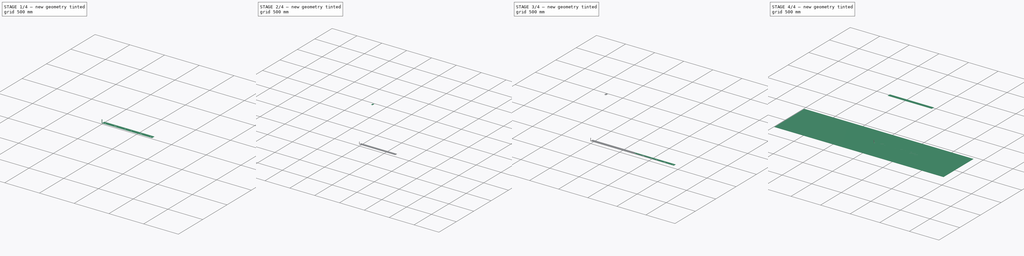
[diagram: build sequence overview — one tinted view per stage of 4, left to right]
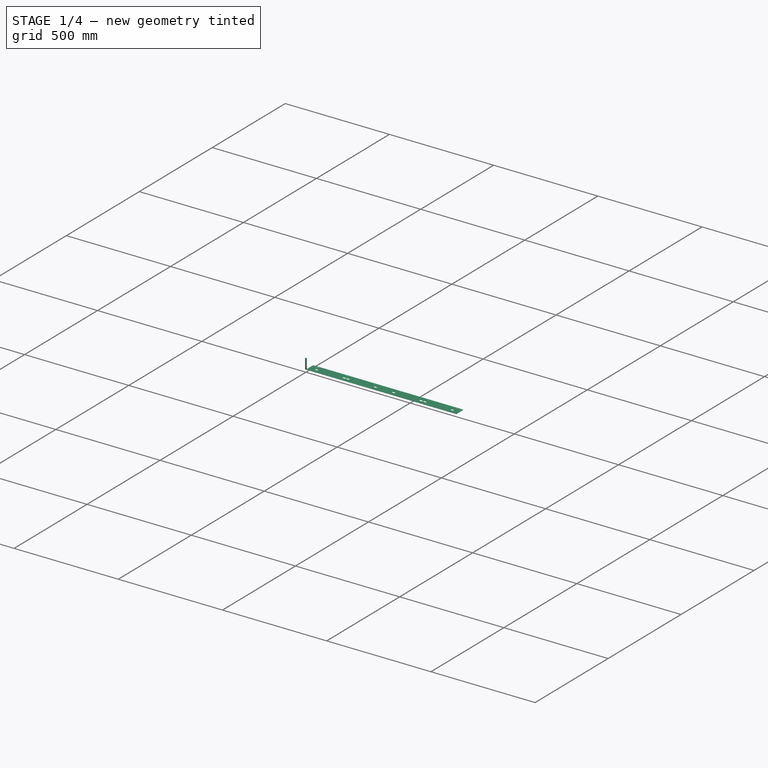
[diagram: stage 1 of 4 — iso view after this stage's code; geometry added in this stage tinted green]
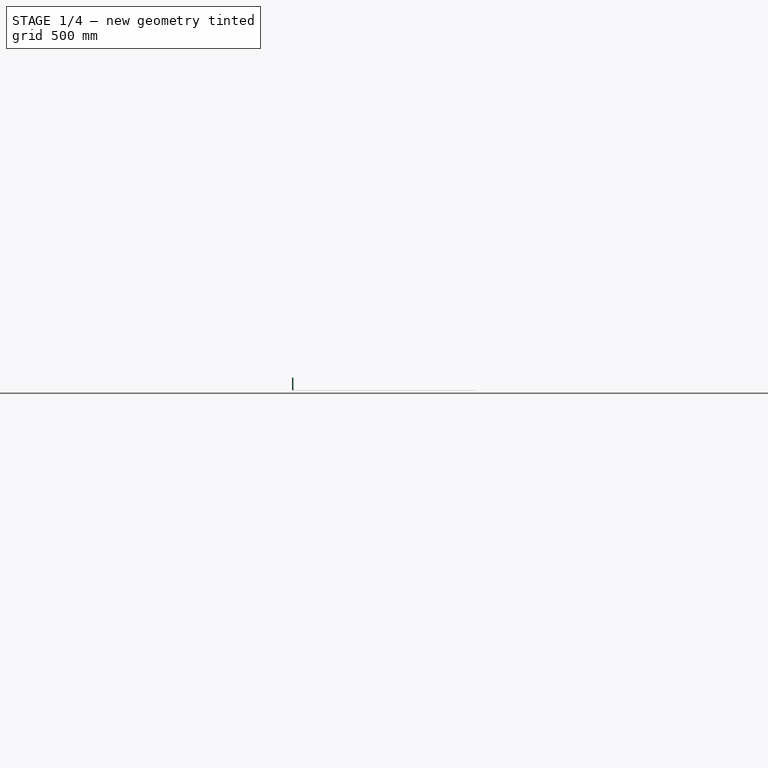
[diagram: stage 1 of 4 — front view after this stage's code; geometry added in this stage tinted green]
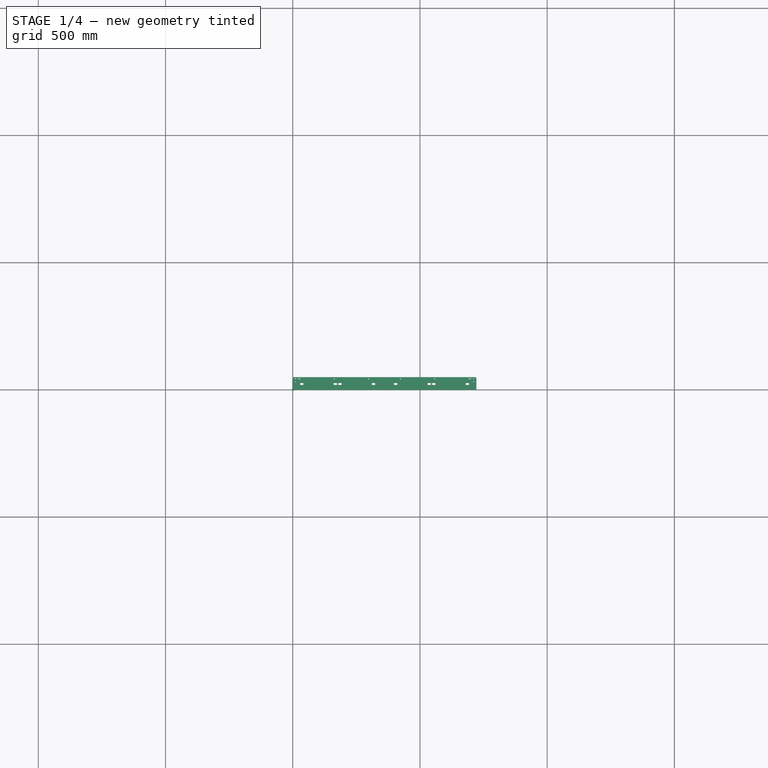
[diagram: stage 1 of 4 — top view after this stage's code; geometry added in this stage tinted green]
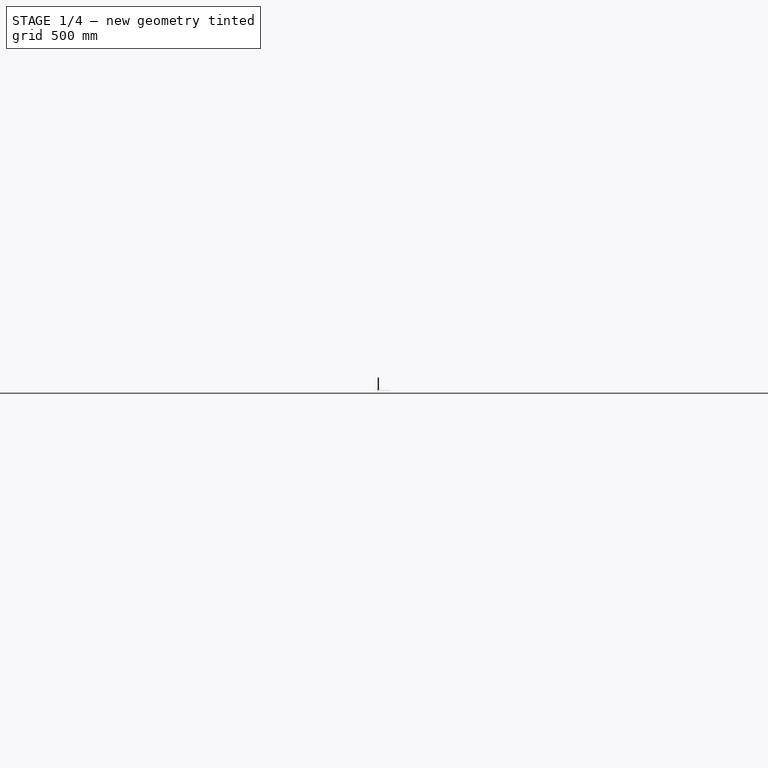
[diagram: stage 1 of 4 — right view after this stage's code; geometry added in this stage tinted green]
FCSTD DOCUMENT  (FreeCAD 0.22R34478 (Git))
Label: composit3_top_amplifier_test
License: All rights reserved
LicenseURL: http://en.wikipedia.org/wiki/All_rights_reserved
objects: Path::FeaturePython×16, App::DocumentObjectGroup×12, Part::FeaturePython×11, Sketcher::SketchObject×8, App::FeaturePython×4, Part::Part2DObjectPython×3, App::Link×2, Part::Feature×2, PartDesign::FeatureBase×2, PartDesign::Body×2, Path::FeatureShape×2
note: 32 computed .brp shape members not serialized (recipe doc carries the construction recipe); baked Part::Feature solids carry a one-line shape summary decoded from their .brp
EXTERNAL_REF file=composit_full_size3.FCStd obj=Common001
EXTERNAL_REF file=composit_full_size3.FCStd obj=Common

FEATURE [App::Link] Link  label="Common001_material_0.30ansi"
  LinkedObject = -> <external composit_full_size3.FCStd>#Common001
FEATURE [App::Link] Link001  label="Common_material_0.30ansi"
  LinkedObject = -> <external composit_full_size3.FCStd>#Common
FEATURE [Part::Feature] Unfold
  Placement = pos=(-2.274e-13,7.39e-13,-351.572) rot=(0.57735,-0.57735,-0.57735;2.0944rad)
  shape: bbox 50 x 721.8 x 0.3 mm, 52 faces (baked)
FEATURE [Sketcher::SketchObject] Unfold_Sketch
  FullyConstrained = false
  sketch-geometry (50):
    g0: LineSegment StartX=-1378 StartY=-360.905 StartZ=0 EndX=-1424.59 EndY=-360.905 EndZ=0
    g1: LineSegment StartX=-1428 StartY=-357.498 StartZ=0 EndX=-1424.59 EndY=-360.905 EndZ=0
    g2: LineSegment StartX=-1378 StartY=360.905 StartZ=0 EndX=-1424.59 EndY=360.905 EndZ=0
    g3: LineSegment StartX=-1428 StartY=357.498 StartZ=0 EndX=-1424.59 EndY=360.905 EndZ=0
    g4: LineSegment StartX=-1404.5 StartY=-181.998 StartZ=0 EndX=-1397.5 EndY=-181.998 EndZ=0
    g5: LineSegment StartX=-1404.5 StartY=-168.998 StartZ=0 EndX=-1404.5 EndY=-181.998 EndZ=0
    g6: LineSegment StartX=-1397.5 StartY=-181.998 StartZ=0 EndX=-1397.5 EndY=-168.998 EndZ=0
    g7: LineSegment StartX=-1397.5 StartY=-168.998 StartZ=0 EndX=-1404.5 EndY=-168.998 EndZ=0
    g8: LineSegment StartX=-1404.5 StartY=-199.998 StartZ=0 EndX=-1397.5 EndY=-199.998 EndZ=0
    g9: LineSegment StartX=-1404.5 StartY=-186.998 StartZ=0 EndX=-1404.5 EndY=-199.998 EndZ=0
    g10: LineSegment StartX=-1397.5 StartY=-199.998 StartZ=0 EndX=-1397.5 EndY=-186.998 EndZ=0
    g11: LineSegment StartX=-1397.5 StartY=-186.998 StartZ=0 EndX=-1404.5 EndY=-186.998 EndZ=0
    g12: LineSegment StartX=-1404.5 StartY=168.998 StartZ=0 EndX=-1404.5 EndY=181.998 EndZ=0
    g13: LineSegment StartX=-1397.5 StartY=168.998 StartZ=0 EndX=-1404.5 EndY=168.998 EndZ=0
    g14: LineSegment StartX=-1404.5 StartY=181.998 StartZ=0 EndX=-1397.5 EndY=181.998 EndZ=0
    g15: LineSegment StartX=-1397.5 StartY=181.998 StartZ=0 EndX=-1397.5 EndY=168.998 EndZ=0
    g16: LineSegment StartX=-1404.5 StartY=186.998 StartZ=0 EndX=-1404.5 EndY=199.998 EndZ=0
    g17: LineSegment StartX=-1397.5 StartY=186.998 StartZ=0 EndX=-1404.5 EndY=186.998 EndZ=0
    g18: LineSegment StartX=-1404.5 StartY=199.998 StartZ=0 EndX=-1397.5 EndY=199.998 EndZ=0
    g19: LineSegment StartX=-1397.5 StartY=199.998 StartZ=0 EndX=-1397.5 EndY=186.998 EndZ=0
    g20: LineSegment StartX=-1404.5 StartY=-49.9985 StartZ=0 EndX=-1397.5 EndY=-49.9985 EndZ=0
    g21: LineSegment StartX=-1404.5 StartY=-36.9985 StartZ=0 EndX=-1404.5 EndY=-49.9985 EndZ=0
    g22: LineSegment StartX=-1397.5 StartY=-49.9985 StartZ=0 EndX=-1397.5 EndY=-36.9985 EndZ=0
    g23: LineSegment StartX=-1397.5 StartY=-36.9985 StartZ=0 EndX=-1404.5 EndY=-36.9985 EndZ=0
    g24: LineSegment StartX=-1404.5 StartY=-331.998 StartZ=0 EndX=-1397.5 EndY=-331.998 EndZ=0
    g25: LineSegment StartX=-1404.5 StartY=-318.998 StartZ=0 EndX=-1404.5 EndY=-331.998 EndZ=0
    g26: LineSegment StartX=-1397.5 StartY=-331.998 StartZ=0 EndX=-1397.5 EndY=-318.998 EndZ=0
    g27: LineSegment StartX=-1397.5 StartY=-318.998 StartZ=0 EndX=-1404.5 EndY=-318.998 EndZ=0
    g28: LineSegment StartX=-1404.5 StartY=318.998 StartZ=0 EndX=-1404.5 EndY=331.998 EndZ=0
    g29: LineSegment StartX=-1397.5 StartY=318.998 StartZ=0 EndX=-1404.5 EndY=318.998 EndZ=0
    g30: LineSegment StartX=-1404.5 StartY=331.998 StartZ=0 EndX=-1397.5 EndY=331.998 EndZ=0
    g31: LineSegment StartX=-1397.5 StartY=331.998 StartZ=0 EndX=-1397.5 EndY=318.998 EndZ=0
    g32: LineSegment StartX=-1404.5 StartY=36.9985 StartZ=0 EndX=-1404.5 EndY=49.9985 EndZ=0
    g33: LineSegment StartX=-1397.5 StartY=36.9985 StartZ=0 EndX=-1404.5 EndY=36.9985 EndZ=0
    g34: LineSegment StartX=-1404.5 StartY=49.9985 StartZ=0 EndX=-1397.5 EndY=49.9985 EndZ=0
    g35: LineSegment StartX=-1397.5 StartY=49.9985 StartZ=0 EndX=-1397.5 EndY=36.9985 EndZ=0
    g36: Circle CenterX=-1421 CenterY=-61.9985 CenterZ=0 NormalX=0 NormalY=0 NormalZ=-1 AngleXU=5.96046e-08 Radius=1.7
    g37: Circle CenterX=-1421 CenterY=61.9985 CenterZ=0 NormalX=0 NormalY=0 NormalZ=1 AngleXU=-3.14159 Radius=1.7
    g38: Ellipse CenterX=-1410 CenterY=350.097 CenterZ=0 NormalX=0 NormalY=0 NormalZ=-1 MajorRadius=1.7 MinorRadius=1.7 AngleXU=3.14158
    g39: Ellipse CenterX=-1422 CenterY=350.097 CenterZ=0 NormalX=0 NormalY=0 NormalZ=-1 MajorRadius=1.7 MinorRadius=1.7 AngleXU=3.14158
    g40: Ellipse CenterX=-1422 CenterY=338.097 CenterZ=0 NormalX=0 NormalY=0 NormalZ=-1 MajorRadius=1.7 MinorRadius=1.7 AngleXU=3.14158
    g41: Circle CenterX=-1421 CenterY=332.998 CenterZ=0 NormalX=0 NormalY=0 NormalZ=1 AngleXU=-3.14159 Radius=1.7
    g42: Circle CenterX=-1421 CenterY=197.498 CenterZ=0 NormalX=0 NormalY=0 NormalZ=1 AngleXU=-3.14159 Radius=1.7
    g43: Ellipse CenterX=-1410 CenterY=-350.097 CenterZ=0 NormalX=0 NormalY=0 NormalZ=-1 MajorRadius=1.7 MinorRadius=1.7 AngleXU=1.36975e-05
    g44: Ellipse CenterX=-1422 CenterY=-350.097 CenterZ=0 NormalX=0 NormalY=0 NormalZ=-1 MajorRadius=1.7 MinorRadius=1.7 AngleXU=1.36975e-05
    g45: Ellipse CenterX=-1422 CenterY=-338.097 CenterZ=0 NormalX=0 NormalY=0 NormalZ=-1 MajorRadius=1.7 MinorRadius=1.7 AngleXU=1.36975e-05
    g46: Circle CenterX=-1421 CenterY=-332.998 CenterZ=0 NormalX=0 NormalY=0 NormalZ=-1 AngleXU=5.96046e-08 Radius=1.7
    g47: Circle CenterX=-1421 CenterY=-197.498 CenterZ=0 NormalX=0 NormalY=0 NormalZ=-1 AngleXU=5.96046e-08 Radius=1.7
    g48: LineSegment StartX=-1378 StartY=-360.905 StartZ=0 EndX=-1378 EndY=360.905 EndZ=0
    g49: LineSegment StartX=-1428 StartY=-357.498 StartZ=0 EndX=-1428 EndY=357.498 EndZ=0
FEATURE [Sketcher::SketchObject] Unfold_Sketch_Outline
  FullyConstrained = false
  Placement = pos=(0,0,0) rot=(0,0,1;3.14159rad)
  sketch-geometry (6):
    g0: LineSegment StartX=1378 StartY=360.905 StartZ=0 EndX=1378 EndY=-360.905 EndZ=0
    g1: LineSegment StartX=1378 StartY=360.905 StartZ=0 EndX=1424.59 EndY=360.905 EndZ=0
    g2: LineSegment StartX=1428 StartY=357.498 StartZ=0 EndX=1424.59 EndY=360.905 EndZ=0
    g3: LineSegment StartX=1428 StartY=357.498 StartZ=0 EndX=1428 EndY=-357.498 EndZ=0
    g4: LineSegment StartX=1428 StartY=-357.498 StartZ=0 EndX=1424.59 EndY=-360.905 EndZ=0
    g5: LineSegment StartX=1378 StartY=-360.905 StartZ=0 EndX=1424.59 EndY=-360.905 EndZ=0
FEATURE [Sketcher::SketchObject] Unfold_Sketch_Internal
  FullyConstrained = false
  sketch-geometry (44):
    g0: LineSegment StartX=-1404.5 StartY=36.9985 StartZ=0 EndX=-1404.5 EndY=49.9985 EndZ=0
    g1: LineSegment StartX=-1404.5 StartY=49.9985 StartZ=0 EndX=-1397.5 EndY=49.9985 EndZ=0
    g2: LineSegment StartX=-1397.5 StartY=49.9985 StartZ=0 EndX=-1397.5 EndY=36.9985 EndZ=0
    g3: LineSegment StartX=-1397.5 StartY=36.9985 StartZ=0 EndX=-1404.5 EndY=36.9985 EndZ=0
    g4: LineSegment StartX=-1404.5 StartY=318.998 StartZ=0 EndX=-1404.5 EndY=331.998 EndZ=0
    g5: LineSegment StartX=-1404.5 StartY=331.998 StartZ=0 EndX=-1397.5 EndY=331.998 EndZ=0
    g6: LineSegment StartX=-1397.5 StartY=331.998 StartZ=0 EndX=-1397.5 EndY=318.998 EndZ=0
    g7: LineSegment StartX=-1397.5 StartY=318.998 StartZ=0 EndX=-1404.5 EndY=318.998 EndZ=0
    g8: LineSegment StartX=-1404.5 StartY=-331.998 StartZ=0 EndX=-1397.5 EndY=-331.998 EndZ=0
    g9: LineSegment StartX=-1397.5 StartY=-331.998 StartZ=0 EndX=-1397.5 EndY=-318.998 EndZ=0
    g10: LineSegment StartX=-1397.5 StartY=-318.998 StartZ=0 EndX=-1404.5 EndY=-318.998 EndZ=0
    g11: LineSegment StartX=-1404.5 StartY=-318.998 StartZ=0 EndX=-1404.5 EndY=-331.998 EndZ=0
    g12: LineSegment StartX=-1404.5 StartY=-49.9985 StartZ=0 EndX=-1397.5 EndY=-49.9985 EndZ=0
    g13: LineSegment StartX=-1397.5 StartY=-49.9985 StartZ=0 EndX=-1397.5 EndY=-36.9985 EndZ=0
    g14: LineSegment StartX=-1397.5 StartY=-36.9985 StartZ=0 EndX=-1404.5 EndY=-36.9985 EndZ=0
    g15: LineSegment StartX=-1404.5 StartY=-36.9985 StartZ=0 EndX=-1404.5 EndY=-49.9985 EndZ=0
    g16: LineSegment StartX=-1404.5 StartY=186.998 StartZ=0 EndX=-1404.5 EndY=199.998 EndZ=0
    g17: LineSegment StartX=-1404.5 StartY=199.998 StartZ=0 EndX=-1397.5 EndY=199.998 EndZ=0
    g18: LineSegment StartX=-1397.5 StartY=199.998 StartZ=0 EndX=-1397.5 EndY=186.998 EndZ=0
    g19: LineSegment StartX=-1397.5 StartY=186.998 StartZ=0 EndX=-1404.5 EndY=186.998 EndZ=0
    g20: LineSegment StartX=-1404.5 StartY=168.998 StartZ=0 EndX=-1404.5 EndY=181.998 EndZ=0
    g21: LineSegment StartX=-1404.5 StartY=181.998 StartZ=0 EndX=-1397.5 EndY=181.998 EndZ=0
    g22: LineSegment StartX=-1397.5 StartY=181.998 StartZ=0 EndX=-1397.5 EndY=168.998 EndZ=0
    g23: LineSegment StartX=-1397.5 StartY=168.998 StartZ=0 EndX=-1404.5 EndY=168.998 EndZ=0
    g24: LineSegment StartX=-1404.5 StartY=-199.998 StartZ=0 EndX=-1397.5 EndY=-199.998 EndZ=0
    g25: LineSegment StartX=-1397.5 StartY=-199.998 StartZ=0 EndX=-1397.5 EndY=-186.998 EndZ=0
    g26: LineSegment StartX=-1397.5 StartY=-186.998 StartZ=0 EndX=-1404.5 EndY=-186.998 EndZ=0
    g27: LineSegment StartX=-1404.5 StartY=-186.998 StartZ=0 EndX=-1404.5 EndY=-199.998 EndZ=0
    g28: LineSegment StartX=-1404.5 StartY=-181.998 StartZ=0 EndX=-1397.5 EndY=-181.998 EndZ=0
    g29: LineSegment StartX=-1397.5 StartY=-181.998 StartZ=0 EndX=-1397.5 EndY=-168.998 EndZ=0
    g30: LineSegment StartX=-1397.5 StartY=-168.998 StartZ=0 EndX=-1404.5 EndY=-168.998 EndZ=0
    g31: LineSegment StartX=-1404.5 StartY=-168.998 StartZ=0 EndX=-1404.5 EndY=-181.998 EndZ=0
    g32: Ellipse CenterX=-1422 CenterY=-338.097 CenterZ=0 NormalX=0 NormalY=0 NormalZ=-1 MajorRadius=1.7 MinorRadius=1.7 AngleXU=1.36975e-05
    g33: Ellipse CenterX=-1422 CenterY=-350.097 CenterZ=0 NormalX=0 NormalY=0 NormalZ=-1 MajorRadius=1.7 MinorRadius=1.7 AngleXU=1.36975e-05
    g34: Ellipse CenterX=-1410 CenterY=-350.097 CenterZ=0 NormalX=0 NormalY=0 NormalZ=-1 MajorRadius=1.7 MinorRadius=1.7 AngleXU=1.36975e-05
    g35: Ellipse CenterX=-1422 CenterY=338.097 CenterZ=0 NormalX=0 NormalY=0 NormalZ=-1 MajorRadius=1.7 MinorRadius=1.7 AngleXU=3.14158
    g36: Ellipse CenterX=-1422 CenterY=350.097 CenterZ=0 NormalX=0 NormalY=0 NormalZ=-1 MajorRadius=1.7 MinorRadius=1.7 AngleXU=3.14158
    g37: Ellipse CenterX=-1410 CenterY=350.097 CenterZ=0 NormalX=0 NormalY=0 NormalZ=-1 MajorRadius=1.7 MinorRadius=1.7 AngleXU=3.14158
    g38: Circle CenterX=-1421 CenterY=-197.498 CenterZ=0 NormalX=0 NormalY=0 NormalZ=-1 AngleXU=5.96046e-08 Radius=1.7
    g39: Circle CenterX=-1421 CenterY=-332.998 CenterZ=0 NormalX=0 NormalY=0 NormalZ=-1 AngleXU=5.96046e-08 Radius=1.7
    g40: Circle CenterX=-1421 CenterY=197.498 CenterZ=0 NormalX=0 NormalY=0 NormalZ=1 AngleXU=-3.14159 Radius=1.7
    g41: Circle CenterX=-1421 CenterY=332.998 CenterZ=0 NormalX=0 NormalY=0 NormalZ=1 AngleXU=-3.14159 Radius=1.7
    g42: Circle CenterX=-1421 CenterY=61.9985 CenterZ=0 NormalX=0 NormalY=0 NormalZ=1 AngleXU=-3.14159 Radius=1.7
    g43: Circle CenterX=-1421 CenterY=-61.9985 CenterZ=0 NormalX=0 NormalY=0 NormalZ=-1 AngleXU=5.96046e-08 Radius=1.7
FEATURE [Sketcher::SketchObject] Unfold_Sketch_bends
  FullyConstrained = false
  sketch-geometry (2):
    g0: LineSegment StartX=-1428 StartY=-14.2492 StartZ=0 EndX=-1378 EndY=-14.2492 EndZ=0
    g1: LineSegment StartX=-1428 StartY=14.2492 StartZ=0 EndX=-1378 EndY=14.2492 EndZ=0
FEATURE [Part::Feature] Unfold001
  Placement = pos=(-4.547e-13,-6.776e-13,351.872) rot=(0.377964,0.654654,0.654654;3.86433rad)
  shape: bbox 1430 x 50 x 0.3 mm, 94 faces (baked)
FEATURE [Sketcher::SketchObject] Unfold_Sketch001
  FullyConstrained = false
  sketch-geometry (92):
    g0: LineSegment StartX=357.498 StartY=1378 StartZ=0 EndX=357.498 EndY=1428 EndZ=0
    g1: LineSegment StartX=-1072.58 StartY=1378 StartZ=0 EndX=357.498 EndY=1378 EndZ=0
    g2: LineSegment StartX=357.498 StartY=1428 StartZ=0 EndX=-1072.58 EndY=1428 EndZ=0
    g3: LineSegment StartX=-1072.58 StartY=1378 StartZ=0 EndX=-1072.58 EndY=1428 EndZ=0
    g4: LineSegment StartX=-1034.08 StartY=1397.5 StartZ=0 EndX=-1047.08 EndY=1397.5 EndZ=0
    g5: LineSegment StartX=-1047.08 StartY=1397.5 StartZ=0 EndX=-1047.08 EndY=1404.5 EndZ=0
    g6: LineSegment StartX=-1047.08 StartY=1404.5 StartZ=0 EndX=-1034.08 EndY=1404.5 EndZ=0
    g7: LineSegment StartX=-1034.08 StartY=1404.5 StartZ=0 EndX=-1034.08 EndY=1397.5 EndZ=0
    g8: LineSegment StartX=-752.079 StartY=1397.5 StartZ=0 EndX=-765.079 EndY=1397.5 EndZ=0
    g9: LineSegment StartX=-765.079 StartY=1397.5 StartZ=0 EndX=-765.079 EndY=1404.5 EndZ=0
    g10: LineSegment StartX=-765.079 StartY=1404.5 StartZ=0 EndX=-752.079 EndY=1404.5 EndZ=0
    g11: LineSegment StartX=-752.079 StartY=1404.5 StartZ=0 EndX=-752.079 EndY=1397.5 EndZ=0
    g12: LineSegment StartX=-665.082 StartY=1397.5 StartZ=0 EndX=-665.082 EndY=1404.5 EndZ=0
    g13: LineSegment StartX=-678.082 StartY=1397.5 StartZ=0 EndX=-665.082 EndY=1397.5 EndZ=0
    g14: LineSegment StartX=-678.082 StartY=1404.5 StartZ=0 EndX=-678.082 EndY=1397.5 EndZ=0
    g15: LineSegment StartX=-665.082 StartY=1404.5 StartZ=0 EndX=-678.082 EndY=1404.5 EndZ=0
    g16: LineSegment StartX=-902.079 StartY=1397.5 StartZ=0 EndX=-915.079 EndY=1397.5 EndZ=0
    g17: LineSegment StartX=-915.079 StartY=1397.5 StartZ=0 EndX=-915.079 EndY=1404.5 EndZ=0
    g18: LineSegment StartX=-915.079 StartY=1404.5 StartZ=0 EndX=-902.079 EndY=1404.5 EndZ=0
    g19: LineSegment StartX=-902.079 StartY=1404.5 StartZ=0 EndX=-902.079 EndY=1397.5 EndZ=0
    g20: LineSegment StartX=-884.079 StartY=1397.5 StartZ=0 EndX=-897.079 EndY=1397.5 EndZ=0
    g21: LineSegment StartX=-897.079 StartY=1397.5 StartZ=0 EndX=-897.079 EndY=1404.5 EndZ=0
    g22: LineSegment StartX=-897.079 StartY=1404.5 StartZ=0 EndX=-884.079 EndY=1404.5 EndZ=0
    g23: LineSegment StartX=-884.079 StartY=1404.5 StartZ=0 EndX=-884.079 EndY=1397.5 EndZ=0
    g24: LineSegment StartX=-533.082 StartY=1397.5 StartZ=0 EndX=-533.082 EndY=1404.5 EndZ=0
    g25: LineSegment StartX=-546.082 StartY=1397.5 StartZ=0 EndX=-533.082 EndY=1397.5 EndZ=0
    g26: LineSegment StartX=-546.082 StartY=1404.5 StartZ=0 EndX=-546.082 EndY=1397.5 EndZ=0
    g27: LineSegment StartX=-533.082 StartY=1404.5 StartZ=0 EndX=-546.082 EndY=1404.5 EndZ=0
    g28: LineSegment StartX=-199.998 StartY=1397.5 StartZ=0 EndX=-199.998 EndY=1404.5 EndZ=0
    g29: LineSegment StartX=-199.998 StartY=1404.5 StartZ=0 EndX=-186.998 EndY=1404.5 EndZ=0
    g30: LineSegment StartX=-186.998 StartY=1404.5 StartZ=0 EndX=-186.998 EndY=1397.5 EndZ=0
    g31: LineSegment StartX=-186.998 StartY=1397.5 StartZ=0 EndX=-199.998 EndY=1397.5 EndZ=0
    g32: LineSegment StartX=-515.082 StartY=1397.5 StartZ=0 EndX=-515.082 EndY=1404.5 EndZ=0
    g33: LineSegment StartX=-528.082 StartY=1397.5 StartZ=0 EndX=-515.082 EndY=1397.5 EndZ=0
    g34: LineSegment StartX=-528.082 StartY=1404.5 StartZ=0 EndX=-528.082 EndY=1397.5 EndZ=0
    g35: LineSegment StartX=-515.082 StartY=1404.5 StartZ=0 EndX=-528.082 EndY=1404.5 EndZ=0
    g36: LineSegment StartX=49.9985 StartY=1397.5 StartZ=0 EndX=49.9985 EndY=1404.5 EndZ=0
    g37: LineSegment StartX=36.9985 StartY=1397.5 StartZ=0 EndX=49.9985 EndY=1397.5 EndZ=0
    g38: LineSegment StartX=36.9985 StartY=1404.5 StartZ=0 EndX=36.9985 EndY=1397.5 EndZ=0
    g39: LineSegment StartX=49.9985 StartY=1404.5 StartZ=0 EndX=36.9985 EndY=1404.5 EndZ=0
    g40: LineSegment StartX=-49.9985 StartY=1397.5 StartZ=0 EndX=-49.9985 EndY=1404.5 EndZ=0
    g41: LineSegment StartX=-49.9985 StartY=1404.5 StartZ=0 EndX=-36.9985 EndY=1404.5 EndZ=0
    g42: LineSegment StartX=-36.9985 StartY=1404.5 StartZ=0 EndX=-36.9985 EndY=1397.5 EndZ=0
    g43: LineSegment StartX=-36.9985 StartY=1397.5 StartZ=0 EndX=-49.9985 EndY=1397.5 EndZ=0
    g44: LineSegment StartX=-181.998 StartY=1397.5 StartZ=0 EndX=-181.998 EndY=1404.5 EndZ=0
    g45: LineSegment StartX=-181.998 StartY=1404.5 StartZ=0 EndX=-168.998 EndY=1404.5 EndZ=0
    g46: LineSegment StartX=-168.998 StartY=1404.5 StartZ=0 EndX=-168.998 EndY=1397.5 EndZ=0
    g47: LineSegment StartX=-168.998 StartY=1397.5 StartZ=0 EndX=-181.998 EndY=1397.5 EndZ=0
    g48: LineSegment StartX=181.998 StartY=1397.5 StartZ=0 EndX=181.998 EndY=1404.5 EndZ=0
    g49: LineSegment StartX=168.998 StartY=1397.5 StartZ=0 EndX=181.998 EndY=1397.5 EndZ=0
    g50: LineSegment StartX=168.998 StartY=1404.5 StartZ=0 EndX=168.998 EndY=1397.5 EndZ=0
    g51: LineSegment StartX=181.998 StartY=1404.5 StartZ=0 EndX=168.998 EndY=1404.5 EndZ=0
    g52: LineSegment StartX=331.998 StartY=1397.5 StartZ=0 EndX=331.998 EndY=1404.5 EndZ=0
    g53: LineSegment StartX=318.998 StartY=1397.5 StartZ=0 EndX=331.998 EndY=1397.5 EndZ=0
    g54: LineSegment StartX=318.998 StartY=1404.5 StartZ=0 EndX=318.998 EndY=1397.5 EndZ=0
    g55: LineSegment StartX=331.998 StartY=1404.5 StartZ=0 EndX=318.998 EndY=1404.5 EndZ=0
    g56: LineSegment StartX=-383.082 StartY=1397.5 StartZ=0 EndX=-383.082 EndY=1404.5 EndZ=0
    g57: LineSegment StartX=-396.082 StartY=1397.5 StartZ=0 EndX=-383.082 EndY=1397.5 EndZ=0
    g58: LineSegment StartX=-396.082 StartY=1404.5 StartZ=0 EndX=-396.082 EndY=1397.5 EndZ=0
    g59: LineSegment StartX=-383.082 StartY=1404.5 StartZ=0 EndX=-396.082 EndY=1404.5 EndZ=0
    g60: LineSegment StartX=199.998 StartY=1397.5 StartZ=0 EndX=199.998 EndY=1404.5 EndZ=0
    g61: LineSegment StartX=186.998 StartY=1397.5 StartZ=0 EndX=199.998 EndY=1397.5 EndZ=0
    g62: LineSegment StartX=186.998 StartY=1404.5 StartZ=0 EndX=186.998 EndY=1397.5 EndZ=0
    g63: LineSegment StartX=199.998 StartY=1404.5 StartZ=0 EndX=186.998 EndY=1404.5 EndZ=0
    g64: LineSegment StartX=-331.998 StartY=1397.5 StartZ=0 EndX=-331.998 EndY=1404.5 EndZ=0
    g65: LineSegment StartX=-331.998 StartY=1404.5 StartZ=0 EndX=-318.998 EndY=1404.5 EndZ=0
    g66: LineSegment StartX=-318.998 StartY=1404.5 StartZ=0 EndX=-318.998 EndY=1397.5 EndZ=0
    g67: LineSegment StartX=-318.998 StartY=1397.5 StartZ=0 EndX=-331.998 EndY=1397.5 EndZ=0
    g68: Circle CenterX=-1048.08 CenterY=1421 CenterZ=0 NormalX=0 NormalY=0 NormalZ=-1 AngleXU=1.5708 Radius=1.7
    g69: Circle CenterX=-61.9985 CenterY=1421 CenterZ=0 NormalX=0 NormalY=0 NormalZ=-1 AngleXU=1.5708 Radius=1.7
    g70: Circle CenterX=197.498 CenterY=1421 CenterZ=0 NormalX=0 NormalY=0 NormalZ=1 AngleXU=1.5708 Radius=1.7
    g71: Circle CenterX=61.9985 CenterY=1421 CenterZ=0 NormalX=0 NormalY=0 NormalZ=1 AngleXU=1.5708 Radius=1.7
    g72: Circle CenterX=332.998 CenterY=1421 CenterZ=0 NormalX=0 NormalY=0 NormalZ=1 AngleXU=1.5708 Radius=1.7
    g73: Circle CenterX=-382.082 CenterY=1421 CenterZ=0 NormalX=0 NormalY=0 NormalZ=1 AngleXU=1.5708 Radius=1.7
    g74: Circle CenterX=-332.998 CenterY=1421 CenterZ=0 NormalX=0 NormalY=0 NormalZ=-1 AngleXU=1.5708 Radius=1.7
    g75: Circle CenterX=-197.498 CenterY=1421 CenterZ=0 NormalX=0 NormalY=0 NormalZ=-1 AngleXU=1.5708 Radius=1.7
    g76: Ellipse CenterX=350.097 CenterY=1422 CenterZ=0 NormalX=0 NormalY=0 NormalZ=-1 MajorRadius=1.7 MinorRadius=1.7 AngleXU=-1.57081
    g77: Ellipse CenterX=350.097 CenterY=1410 CenterZ=0 NormalX=0 NormalY=0 NormalZ=-1 MajorRadius=1.7 MinorRadius=1.7 AngleXU=-1.57081
    g78: Ellipse CenterX=338.097 CenterY=1422 CenterZ=0 NormalX=0 NormalY=0 NormalZ=-1 MajorRadius=1.7 MinorRadius=1.7 AngleXU=-1.57081
    g79: Ellipse CenterX=-338.097 CenterY=1422 CenterZ=0 NormalX=0 NormalY=0 NormalZ=-1 MajorRadius=1.7 MinorRadius=1.7 AngleXU=1.57081
    g80: Ellipse CenterX=-350.097 CenterY=1410 CenterZ=0 NormalX=0 NormalY=0 NormalZ=-1 MajorRadius=1.7 MinorRadius=1.7 AngleXU=1.57081
    g81: Ellipse CenterX=-350.097 CenterY=1422 CenterZ=0 NormalX=0 NormalY=0 NormalZ=-1 MajorRadius=1.7 MinorRadius=1.7 AngleXU=1.57081
    g82: Ellipse CenterX=-364.984 CenterY=1410 CenterZ=0 NormalX=0 NormalY=0 NormalZ=-1 MajorRadius=1.7 MinorRadius=1.7 AngleXU=-1.57081
    g83: Ellipse CenterX=-376.984 CenterY=1422 CenterZ=0 NormalX=0 NormalY=0 NormalZ=-1 MajorRadius=1.7 MinorRadius=1.7 AngleXU=-1.57081
    g84: Ellipse CenterX=-364.984 CenterY=1422 CenterZ=0 NormalX=0 NormalY=0 NormalZ=-1 MajorRadius=1.7 MinorRadius=1.7 AngleXU=-1.57081
    g85: Circle CenterX=-517.582 CenterY=1421 CenterZ=0 NormalX=0 NormalY=0 NormalZ=1 AngleXU=1.5708 Radius=1.7
    g86: Circle CenterX=-653.082 CenterY=1421 CenterZ=0 NormalX=0 NormalY=0 NormalZ=1 AngleXU=1.5708 Radius=1.7
    g87: Circle CenterX=-912.579 CenterY=1421 CenterZ=0 NormalX=0 NormalY=0 NormalZ=-1 AngleXU=1.5708 Radius=1.7
    g88: Circle CenterX=-777.079 CenterY=1421 CenterZ=0 NormalX=0 NormalY=0 NormalZ=-1 AngleXU=1.5708 Radius=1.7
    g89: Ellipse CenterX=-1065.18 CenterY=1410 CenterZ=0 NormalX=0 NormalY=0 NormalZ=-1 MajorRadius=1.7 MinorRadius=1.7 AngleXU=1.57081
    g90: Ellipse CenterX=-1053.18 CenterY=1422 CenterZ=0 NormalX=0 NormalY=0 NormalZ=-1 MajorRadius=1.7 MinorRadius=1.7 AngleXU=1.57081
    g91: Ellipse CenterX=-1065.18 CenterY=1422 CenterZ=0 NormalX=0 NormalY=0 NormalZ=-1 MajorRadius=1.7 MinorRadius=1.7 AngleXU=1.57081
FEATURE [Sketcher::SketchObject] Unfold_Sketch_Outline001
  FullyConstrained = false
  sketch-geometry (4):
    g0: LineSegment StartX=357.498 StartY=1378 StartZ=0 EndX=357.498 EndY=1428 EndZ=0
    g1: LineSegment StartX=357.498 StartY=1428 StartZ=0 EndX=-1072.58 EndY=1428 EndZ=0
    g2: LineSegment StartX=-1072.58 StartY=1378 StartZ=0 EndX=-1072.58 EndY=1428 EndZ=0
    g3: LineSegment StartX=-1072.58 StartY=1378 StartZ=0 EndX=357.498 EndY=1378 EndZ=0
FEATURE [Sketcher::SketchObject] Unfold_Sketch_Internal001
  FullyConstrained = false
  sketch-geometry (88):
    g0: LineSegment StartX=-752.079 StartY=1397.5 StartZ=0 EndX=-765.079 EndY=1397.5 EndZ=0
    g1: LineSegment StartX=-765.079 StartY=1397.5 StartZ=0 EndX=-765.079 EndY=1404.5 EndZ=0
    g2: LineSegment StartX=-765.079 StartY=1404.5 StartZ=0 EndX=-752.079 EndY=1404.5 EndZ=0
    g3: LineSegment StartX=-752.079 StartY=1404.5 StartZ=0 EndX=-752.079 EndY=1397.5 EndZ=0
    g4: LineSegment StartX=-331.998 StartY=1397.5 StartZ=0 EndX=-331.998 EndY=1404.5 EndZ=0
    g5: LineSegment StartX=-331.998 StartY=1404.5 StartZ=0 EndX=-318.998 EndY=1404.5 EndZ=0
    g6: LineSegment StartX=-318.998 StartY=1404.5 StartZ=0 EndX=-318.998 EndY=1397.5 EndZ=0
    g7: LineSegment StartX=-318.998 StartY=1397.5 StartZ=0 EndX=-331.998 EndY=1397.5 EndZ=0
    g8: LineSegment StartX=-199.998 StartY=1397.5 StartZ=0 EndX=-199.998 EndY=1404.5 EndZ=0
    g9: LineSegment StartX=-199.998 StartY=1404.5 StartZ=0 EndX=-186.998 EndY=1404.5 EndZ=0
    g10: LineSegment StartX=-186.998 StartY=1404.5 StartZ=0 EndX=-186.998 EndY=1397.5 EndZ=0
    g11: LineSegment StartX=-186.998 StartY=1397.5 StartZ=0 EndX=-199.998 EndY=1397.5 EndZ=0
    g12: LineSegment StartX=199.998 StartY=1397.5 StartZ=0 EndX=199.998 EndY=1404.5 EndZ=0
    g13: LineSegment StartX=199.998 StartY=1404.5 StartZ=0 EndX=186.998 EndY=1404.5 EndZ=0
    g14: LineSegment StartX=186.998 StartY=1404.5 StartZ=0 EndX=186.998 EndY=1397.5 EndZ=0
    g15: LineSegment StartX=186.998 StartY=1397.5 StartZ=0 EndX=199.998 EndY=1397.5 EndZ=0
    g16: LineSegment StartX=-181.998 StartY=1397.5 StartZ=0 EndX=-181.998 EndY=1404.5 EndZ=0
    g17: LineSegment StartX=-181.998 StartY=1404.5 StartZ=0 EndX=-168.998 EndY=1404.5 EndZ=0
    g18: LineSegment StartX=-168.998 StartY=1404.5 StartZ=0 EndX=-168.998 EndY=1397.5 EndZ=0
    g19: LineSegment StartX=-168.998 StartY=1397.5 StartZ=0 EndX=-181.998 EndY=1397.5 EndZ=0
    g20: LineSegment StartX=49.9985 StartY=1397.5 StartZ=0 EndX=49.9985 EndY=1404.5 EndZ=0
    g21: LineSegment StartX=49.9985 StartY=1404.5 StartZ=0 EndX=36.9985 EndY=1404.5 EndZ=0
    g22: LineSegment StartX=36.9985 StartY=1404.5 StartZ=0 EndX=36.9985 EndY=1397.5 EndZ=0
    g23: LineSegment StartX=36.9985 StartY=1397.5 StartZ=0 EndX=49.9985 EndY=1397.5 EndZ=0
    g24: LineSegment StartX=-49.9985 StartY=1397.5 StartZ=0 EndX=-49.9985 EndY=1404.5 EndZ=0
    g25: LineSegment StartX=-49.9985 StartY=1404.5 StartZ=0 EndX=-36.9985 EndY=1404.5 EndZ=0
    g26: LineSegment StartX=-36.9985 StartY=1404.5 StartZ=0 EndX=-36.9985 EndY=1397.5 EndZ=0
    g27: LineSegment StartX=-36.9985 StartY=1397.5 StartZ=0 EndX=-49.9985 EndY=1397.5 EndZ=0
    g28: LineSegment StartX=331.998 StartY=1397.5 StartZ=0 EndX=331.998 EndY=1404.5 EndZ=0
    g29: LineSegment StartX=331.998 StartY=1404.5 StartZ=0 EndX=318.998 EndY=1404.5 EndZ=0
    g30: LineSegment StartX=318.998 StartY=1404.5 StartZ=0 EndX=318.998 EndY=1397.5 EndZ=0
    g31: LineSegment StartX=318.998 StartY=1397.5 StartZ=0 EndX=331.998 EndY=1397.5 EndZ=0
    g32: LineSegment StartX=181.998 StartY=1397.5 StartZ=0 EndX=181.998 EndY=1404.5 EndZ=0
    g33: LineSegment StartX=181.998 StartY=1404.5 StartZ=0 EndX=168.998 EndY=1404.5 EndZ=0
    g34: LineSegment StartX=168.998 StartY=1404.5 StartZ=0 EndX=168.998 EndY=1397.5 EndZ=0
    g35: LineSegment StartX=168.998 StartY=1397.5 StartZ=0 EndX=181.998 EndY=1397.5 EndZ=0
    g36: LineSegment StartX=-515.082 StartY=1397.5 StartZ=0 EndX=-515.082 EndY=1404.5 EndZ=0
    g37: LineSegment StartX=-515.082 StartY=1404.5 StartZ=0 EndX=-528.082 EndY=1404.5 EndZ=0
    g38: LineSegment StartX=-528.082 StartY=1404.5 StartZ=0 EndX=-528.082 EndY=1397.5 EndZ=0
    g39: LineSegment StartX=-528.082 StartY=1397.5 StartZ=0 EndX=-515.082 EndY=1397.5 EndZ=0
    g40: LineSegment StartX=-533.082 StartY=1397.5 StartZ=0 EndX=-533.082 EndY=1404.5 EndZ=0
    g41: LineSegment StartX=-533.082 StartY=1404.5 StartZ=0 EndX=-546.082 EndY=1404.5 EndZ=0
    g42: LineSegment StartX=-546.082 StartY=1404.5 StartZ=0 EndX=-546.082 EndY=1397.5 EndZ=0
    g43: LineSegment StartX=-546.082 StartY=1397.5 StartZ=0 EndX=-533.082 EndY=1397.5 EndZ=0
    g44: LineSegment StartX=-884.079 StartY=1397.5 StartZ=0 EndX=-897.079 EndY=1397.5 EndZ=0
    g45: LineSegment StartX=-897.079 StartY=1397.5 StartZ=0 EndX=-897.079 EndY=1404.5 EndZ=0
    g46: LineSegment StartX=-897.079 StartY=1404.5 StartZ=0 EndX=-884.079 EndY=1404.5 EndZ=0
    g47: LineSegment StartX=-884.079 StartY=1404.5 StartZ=0 EndX=-884.079 EndY=1397.5 EndZ=0
    g48: LineSegment StartX=-902.079 StartY=1397.5 StartZ=0 EndX=-915.079 EndY=1397.5 EndZ=0
    g49: LineSegment StartX=-915.079 StartY=1397.5 StartZ=0 EndX=-915.079 EndY=1404.5 EndZ=0
    g50: LineSegment StartX=-915.079 StartY=1404.5 StartZ=0 EndX=-902.079 EndY=1404.5 EndZ=0
    g51: LineSegment StartX=-902.079 StartY=1404.5 StartZ=0 EndX=-902.079 EndY=1397.5 EndZ=0
    g52: LineSegment StartX=-665.082 StartY=1397.5 StartZ=0 EndX=-665.082 EndY=1404.5 EndZ=0
    g53: LineSegment StartX=-665.082 StartY=1404.5 StartZ=0 EndX=-678.082 EndY=1404.5 EndZ=0
    g54: LineSegment StartX=-678.082 StartY=1404.5 StartZ=0 EndX=-678.082 EndY=1397.5 EndZ=0
    g55: LineSegment StartX=-678.082 StartY=1397.5 StartZ=0 EndX=-665.082 EndY=1397.5 EndZ=0
    g56: LineSegment StartX=-1034.08 StartY=1397.5 StartZ=0 EndX=-1047.08 EndY=1397.5 EndZ=0
    g57: LineSegment StartX=-1047.08 StartY=1397.5 StartZ=0 EndX=-1047.08 EndY=1404.5 EndZ=0
    g58: LineSegment StartX=-1047.08 StartY=1404.5 StartZ=0 EndX=-1034.08 EndY=1404.5 EndZ=0
    g59: LineSegment StartX=-1034.08 StartY=1404.5 StartZ=0 EndX=-1034.08 EndY=1397.5 EndZ=0
    g60: LineSegment StartX=-383.082 StartY=1397.5 StartZ=0 EndX=-383.082 EndY=1404.5 EndZ=0
    g61: LineSegment StartX=-383.082 StartY=1404.5 StartZ=0 EndX=-396.082 EndY=1404.5 EndZ=0
    g62: LineSegment StartX=-396.082 StartY=1404.5 StartZ=0 EndX=-396.082 EndY=1397.5 EndZ=0
    g63: LineSegment StartX=-396.082 StartY=1397.5 StartZ=0 EndX=-383.082 EndY=1397.5 EndZ=0
    g64: Ellipse CenterX=338.097 CenterY=1422 CenterZ=0 NormalX=0 NormalY=0 NormalZ=-1 MajorRadius=1.7 MinorRadius=1.7 AngleXU=-1.57081
    g65: Ellipse CenterX=350.097 CenterY=1410 CenterZ=0 NormalX=0 NormalY=0 NormalZ=-1 MajorRadius=1.7 MinorRadius=1.7 AngleXU=-1.57081
    g66: Ellipse CenterX=350.097 CenterY=1422 CenterZ=0 NormalX=0 NormalY=0 NormalZ=-1 MajorRadius=1.7 MinorRadius=1.7 AngleXU=-1.57081
    g67: Ellipse CenterX=-364.984 CenterY=1422 CenterZ=0 NormalX=0 NormalY=0 NormalZ=-1 MajorRadius=1.7 MinorRadius=1.7 AngleXU=-1.57081
    g68: Ellipse CenterX=-376.984 CenterY=1422 CenterZ=0 NormalX=0 NormalY=0 NormalZ=-1 MajorRadius=1.7 MinorRadius=1.7 AngleXU=-1.57081
    g69: Ellipse CenterX=-364.984 CenterY=1410 CenterZ=0 NormalX=0 NormalY=0 NormalZ=-1 MajorRadius=1.7 MinorRadius=1.7 AngleXU=-1.57081
    g70: Ellipse CenterX=-350.097 CenterY=1422 CenterZ=0 NormalX=0 NormalY=0 NormalZ=-1 MajorRadius=1.7 MinorRadius=1.7 AngleXU=1.57081
    g71: Ellipse CenterX=-350.097 CenterY=1410 CenterZ=0 NormalX=0 NormalY=0 NormalZ=-1 MajorRadius=1.7 MinorRadius=1.7 AngleXU=1.57081
    g72: Ellipse CenterX=-338.097 CenterY=1422 CenterZ=0 NormalX=0 NormalY=0 NormalZ=-1 MajorRadius=1.7 MinorRadius=1.7 AngleXU=1.57081
    g73: Ellipse CenterX=-1065.18 CenterY=1422 CenterZ=0 NormalX=0 NormalY=0 NormalZ=-1 MajorRadius=1.7 MinorRadius=1.7 AngleXU=1.57081
    g74: Ellipse CenterX=-1053.18 CenterY=1422 CenterZ=0 NormalX=0 NormalY=0 NormalZ=-1 MajorRadius=1.7 MinorRadius=1.7 AngleXU=1.57081
    g75: Ellipse CenterX=-1065.18 CenterY=1410 CenterZ=0 NormalX=0 NormalY=0 NormalZ=-1 MajorRadius=1.7 MinorRadius=1.7 AngleXU=1.57081
    g76: Circle CenterX=-1048.08 CenterY=1421 CenterZ=0 NormalX=0 NormalY=0 NormalZ=-1 AngleXU=1.5708 Radius=1.7
    g77: Circle CenterX=-197.498 CenterY=1421 CenterZ=0 NormalX=0 NormalY=0 NormalZ=-1 AngleXU=1.5708 Radius=1.7
    g78: Circle CenterX=-332.998 CenterY=1421 CenterZ=0 NormalX=0 NormalY=0 NormalZ=-1 AngleXU=1.5708 Radius=1.7
    g79: Circle CenterX=-382.082 CenterY=1421 CenterZ=0 NormalX=0 NormalY=0 NormalZ=1 AngleXU=1.5708 Radius=1.7
    g80: Circle CenterX=332.998 CenterY=1421 CenterZ=0 NormalX=0 NormalY=0 NormalZ=1 AngleXU=1.5708 Radius=1.7
    g81: Circle CenterX=197.498 CenterY=1421 CenterZ=0 NormalX=0 NormalY=0 NormalZ=1 AngleXU=1.5708 Radius=1.7
    g82: Circle CenterX=61.9985 CenterY=1421 CenterZ=0 NormalX=0 NormalY=0 NormalZ=1 AngleXU=1.5708 Radius=1.7
    g83: Circle CenterX=-61.9985 CenterY=1421 CenterZ=0 NormalX=0 NormalY=0 NormalZ=-1 AngleXU=1.5708 Radius=1.7
    g84: Circle CenterX=-777.079 CenterY=1421 CenterZ=0 NormalX=0 NormalY=0 NormalZ=-1 AngleXU=1.5708 Radius=1.7
    g85: Circle CenterX=-912.579 CenterY=1421 CenterZ=0 NormalX=0 NormalY=0 NormalZ=-1 AngleXU=1.5708 Radius=1.7
    g86: Circle CenterX=-653.082 CenterY=1421 CenterZ=0 NormalX=0 NormalY=0 NormalZ=1 AngleXU=1.5708 Radius=1.7
    g87: Circle CenterX=-517.582 CenterY=1421 CenterZ=0 NormalX=0 NormalY=0 NormalZ=1 AngleXU=1.5708 Radius=1.7
FEATURE [Sketcher::SketchObject] Unfold_Sketch_bends001
  FullyConstrained = false
  sketch-geometry (5):
    g0: LineSegment StartX=-729.33 StartY=1428 StartZ=0 EndX=-729.33 EndY=1378 EndZ=0
    g1: LineSegment StartX=-700.831 StartY=1428 StartZ=0 EndX=-700.831 EndY=1378 EndZ=0
    g2: LineSegment StartX=-357.54 StartY=1428 StartZ=0 EndX=-357.54 EndY=1378 EndZ=0
    g3: LineSegment StartX=-14.2492 StartY=1428 StartZ=0 EndX=-14.2492 EndY=1378 EndZ=0
    g4: LineSegment StartX=14.2492 StartY=1428 StartZ=0 EndX=14.2492 EndY=1378 EndZ=0
FEATURE [PartDesign::FeatureBase] BaseFeature
  BaseFeature = -> Unfold
  Placement = pos=(-2.274e-13,7.39e-13,-351.572) rot=(0.57735,-0.57735,-0.57735;2.0944rad)
  expr: Placement = .BaseFeature.Placement
FEATURE [Path::FeaturePython] Custom  # Path/CAM operation (typed FeaturePython)
  Active = true
  CoolantMode = 0
  CycleTime = 00:00:00
  Gcode = G0 Z10
  OpStockZMax = 1.00074
  OpStockZMin = 0
  OpToolDiameter = 3.17
  Source = 0
  StartDepth = 1.00074
FEATURE [Path::FeaturePython] Deburr003  # Path/CAM operation (typed FeaturePython)
  Active = true
  Base = -> [Clone001]
  ClearanceHeight = 6
  CoolantMode = 0
  CycleTime = 00:00:35
  Direction = 0
  EntryPoint = 0
  ExtraDepth = 0
  Join = 0
  OpStockZMax = 1
  OpStockZMin = 0
  OpToolDiameter = 10
  SafeHeight = 4
  Side = 0
  StartDepth = 1
  StepDown = 0
  ToolController = -> NZV6109015
  Width = 0
  expr: ClearanceHeight = OpStockZMax + SetupSheet.ClearanceHeightOffset
  expr: SafeHeight = OpStockZMax + SetupSheet.SafeHeightOffset
  expr: StepDown = 0 mm
FEATURE [Path::FeatureShape] PathShape
  AbsoluteArcCenter = false
  ArcPlane = 1
  Deflection = 0.01
  Direction = 0
  EmitPreamble = false
  FeedRate = 50
  FeedRateVertical = 20
  MinDistance = 0
  NearestK = 10
  Orientation = 0
  Placement = pos=(0,0,0.5) rot=(0,0,1;0rad)
  ResumeHeight = 0.5
  RetractAxis = 2
  RetractThreshold = 3.5
  Retraction = 10
  Segmentation = 0
  SortAbscissa = 3
  SortMode = 2
  Sources = -> [Clone2D]
  StartPoint = (0,0,0)
  UseStartPoint = false
  Verbose = true
  expr: .Placement.Base.z = ResumeHeight
  expr: Sources = <<Model001>>.Group
FEATURE [App::DocumentObjectGroup] Operations001
  Group = -> [Deburr003,PathShape,Custom]
FEATURE [Path::FeaturePython] Job001  # Path/CAM operation (typed FeaturePython)
  CycleTime = 00:00:35
  Fixtures = G54
  GeometryTolerance = 0.01
  JobType = 0
  LastPostProcessDate = 2023-10-04 17:06:30.484354
  LastPostProcessOutput = <userpath>/2CAF-B51C/2.tap
  Model = -> Model001
  Operations = -> Operations001
  OrderOutputBy = 0
  PostProcessor = 3
  PostProcessorOutputFile = %d.%j.tap
  SetupSheet = -> SetupSheet001
  SplitOutput = false
  Stock = -> Stock001
  Tools = -> Tools001
FEATURE [Path::FeaturePython] Profile001  # Path/CAM operation (typed FeaturePython)
  Active = true
  AreaParams:
    Tolerance = 1e-07
    FitArcs = True
    Simplify = False
    CleanDistance = 0.0
    Accuracy = 0.01
    Unit = 1.0
    MinArcPoints = 4
    MaxArcPoints = 100
    ClipperScale = 10000000.0
    Fill = 0
    Coplanar = 0
    Reorient = True
    Outline = False
    Explode = False
    OpenMode = 0
    Deflection = 0.01
    SubjectFill = 0
    ClipFill = 0
    Offset = 1.585
    ExtraPass = 0
    Stepover = 0.0
    LastStepover = 0.0
    JoinType = 0
    EndType = 0
    MiterLimit = 2.0
    RoundPrecision = 0.0
    PocketMode = 0
    ToolRadius = 1.0
    PocketExtraOffset = 0.0
    PocketStepover = 0.0
    PocketLastStepover = 0.0
    FromCenter = False
    Angle = 45.0
    AngleShift = 0.0
    Shift = 0.0
    Thicken = False
    SectionCount = -1
    Stepdown = 1.0
    SectionOffset = 0.0
    SectionTolerance = 1e-07
    SectionMode = 2
    Project = False
  Base = -> [Clone001]
  ClearanceHeight = 6.3
  CoolantMode = 0
  CycleTime = 00:02:14
  Direction = 1
  FinalDepth = -0.1
  HandleMultipleFeatures = 0
  JoinType = 0
  MiterLimit = 0.1
  OffsetExtra = 0
  OpFinalDepth = -2.3635e-11
  OpStartDepth = 1.3
  OpStockZMax = 1.3
  OpStockZMin = -2.3635e-11
  OpToolDiameter = 3.17
  PathParams:
    orientation = 0
    feedrate = 33.333333333333336
    feedrate_v = 8.333333333333334
    verbose = True
    resume_height = 4.300000000025008
    retraction = 6.300000000025008
    return_end = True
    preamble = False
  SafeHeight = 4.3
  Side = 0
  SplitArcs = false
  StartDepth = 3
  StartPoint = (0,0,0)
  StepDown = 4
  ToolController = -> __175mm_Endmill
  UseComp = true
  UseStartPoint = false
  processCircles = false
  processHoles = false
  processPerimeter = true
  expr: Base = <<Profile>>.Base
  expr: ClearanceHeight = OpStockZMax + SetupSheet.ClearanceHeightOffset
  expr: FinalDepth = -0.1 mm
  expr: SafeHeight = OpStockZMax + SetupSheet.SafeHeightOffset
  expr: StartDepth = 3 mm
  expr: StepDown = 4 mm
FEATURE [App::DocumentObjectGroup] Operations
  Group = -> [Profile,Profile001]
FEATURE [Path::FeaturePython] Job  # Path/CAM operation (typed FeaturePython)
  CycleTime = 00:04:18
  Fixtures = G54
  GeometryTolerance = 0.01
  JobType = 0
  LastPostProcessDate = 2023-10-04 17:06:07.304358
  LastPostProcessOutput = <userpath>/2CAF-B51C/1.tap \n<userpath>/2CAF-B51C/3.tap
  Model = -> Model
  Operations = -> Operations
  OrderOutputBy = 2
  PostProcessor = 3
  PostProcessorOutputFile = %d.%j.tap
  SetupSheet = -> SetupSheet
  SplitOutput = true
  Stock = -> Stock
  Tools = -> Tools
FEATURE [App::FeaturePython] SetupSheet002  # Path/CAM operation (typed FeaturePython)
  ClearanceHeightExpression = OpStockZMax+SetupSheet002.ClearanceHeightOffset
  ClearanceHeightOffset = 5
  CoolantMode = 0
  CoolantModes = None | Flood | Mist
  FinalDepthExpression = -0.1 mm
  HorizRapid = 0
  ProfileDirection = 1
  ProfileSide = 0
  ProfileUseComp = true
  ProfileprocessCircles = true
  ProfileprocessHoles = true
  ProfileprocessPerimeter = true
  SafeHeightExpression = OpStockZMax+SetupSheet002.SafeHeightOffset
  SafeHeightOffset = 3
  StartDepthExpression = 3 mm
  StepDownExpression = 4 mm
  VertRapid = 0
FEATURE [Part::FeaturePython] Clone002  label="Model-Body002"  # Draft clone (typed FeaturePython)
  AttacherType = Attacher::AttachEngine3D
  Fuse = false
  Objects = -> [Body]
  PathResource = Model
  Placement = pos=(360.905,-1378,0) rot=(0,0,-1;1.5708rad)
  Scale = (1,1,1)
FEATURE [Path::FeaturePython] Profile002  # Path/CAM operation (typed FeaturePython)
  Active = true
  AreaParams:
    Tolerance = 1e-07
    FitArcs = True
    Simplify = False
    CleanDistance = 0.0
    Accuracy = 0.01
    Unit = 1.0
    MinArcPoints = 4
    MaxArcPoints = 100
    ClipperScale = 10000000.0
    Fill = 0
    Coplanar = 0
    Reorient = True
    Outline = False
    Explode = False
    OpenMode = 0
    Deflection = 0.01
    SubjectFill = 0
    ClipFill = 0
    Offset = -1.585
    ExtraPass = 0
    Stepover = 0.0
    LastStepover = 0.0
    JoinType = 0
    EndType = 0
    MiterLimit = 2.0
    RoundPrecision = 0.0
    PocketMode = 0
    ToolRadius = 1.0
    PocketExtraOffset = 0.0
    PocketStepover = 0.0
    PocketLastStepover = 0.0
    FromCenter = False
    Angle = 45.0
    AngleShift = 0.0
    Shift = 0.0
    Thicken = False
    SectionCount = -1
    Stepdown = 1.0
    SectionOffset = 0.0
    SectionTolerance = 1e-07
    SectionMode = 2
    Project = False
  Base = -> [Clone002]
  ClearanceHeight = 6.3
  CoolantMode = 0
  CycleTime = 00:01:03
  Direction = 1
  FinalDepth = -0.1
  HandleMultipleFeatures = 0
  JoinType = 0
  MiterLimit = 0.1
  OffsetExtra = 0
  OpFinalDepth = -2.3635e-11
  OpStartDepth = 1.3
  OpStockZMax = 1.3
  OpStockZMin = 0
  OpToolDiameter = 3.17
  PathParams = {'orientation': 1, 'feedrate': 33.333333333333336, 'feedrate_v': 8.333333333333334, 'verbose': True, 'resume_height': 4.300000000047452, 'retraction': 6.300000000047452, 'return_end': True, 'preamble': False, 'start': Vector (710.8949663025346, 43.99522870000045, 6.300000000047452)}
  SafeHeight = 4.3
  Side = 0
  SplitArcs = false
  StartDepth = 3
  StartPoint = (0,0,0)
  StepDown = 4
  ToolController = -> __175mm_Endmill
  UseComp = true
  UseStartPoint = false
  processCircles = true
  processHoles = true
  processPerimeter = false
  expr: ClearanceHeight = OpStockZMax + SetupSheet.ClearanceHeightOffset
  expr: FinalDepth = -0.1 mm
  expr: SafeHeight = OpStockZMax + SetupSheet.SafeHeightOffset
  expr: StartDepth = 3 mm
  expr: StepDown = 4 mm
FEATURE [Path::FeaturePython] Profile003  # Path/CAM operation (typed FeaturePython)
  Active = true
  AreaParams:
    Tolerance = 1e-07
    FitArcs = True
    Simplify = False
    CleanDistance = 0.0
    Accuracy = 0.01
    Unit = 1.0
    MinArcPoints = 4
    MaxArcPoints = 100
    ClipperScale = 10000000.0
    Fill = 0
    Coplanar = 0
    Reorient = True
    Outline = False
    Explode = False
    OpenMode = 0
    Deflection = 0.01
    SubjectFill = 0
    ClipFill = 0
    Offset = 1.585
    ExtraPass = 0
    Stepover = 0.0
    LastStepover = 0.0
    JoinType = 0
    EndType = 0
    MiterLimit = 2.0
    RoundPrecision = 0.0
    PocketMode = 0
    ToolRadius = 1.0
    PocketExtraOffset = 0.0
    PocketStepover = 0.0
    PocketLastStepover = 0.0
    FromCenter = False
    Angle = 45.0
    AngleShift = 0.0
    Shift = 0.0
    Thicken = False
    SectionCount = -1
    Stepdown = 1.0
    SectionOffset = 0.0
    SectionTolerance = 1e-07
    SectionMode = 2
    Project = False
  Base = -> [Clone002]
  ClearanceHeight = 6.3
  CoolantMode = 0
  CycleTime = 00:01:10
  Direction = 1
  FinalDepth = -0.1
  HandleMultipleFeatures = 0
  JoinType = 0
  MiterLimit = 0.1
  OffsetExtra = 0
  OpFinalDepth = -2.3635e-11
  OpStartDepth = 1.3
  OpStockZMax = 1.3
  OpStockZMin = 0
  OpToolDiameter = 3.17
  PathParams:
    orientation = 0
    feedrate = 33.333333333333336
    feedrate_v = 8.333333333333334
    verbose = True
    resume_height = 4.300000000047452
    retraction = 6.300000000047452
    return_end = True
    preamble = False
  SafeHeight = 4.3
  Side = 0
  SplitArcs = false
  StartDepth = 3
  StartPoint = (0,0,0)
  StepDown = 4
  ToolController = -> __175mm_Endmill
  UseComp = true
  UseStartPoint = false
  processCircles = false
  processHoles = false
  processPerimeter = true
  expr: Base = <<Profile002>>.Base
  expr: ClearanceHeight = OpStockZMax + SetupSheet.ClearanceHeightOffset
  expr: FinalDepth = -0.1 mm
  expr: SafeHeight = OpStockZMax + SetupSheet.SafeHeightOffset
  expr: StartDepth = 3 mm
  expr: StepDown = 4 mm
FEATURE [App::DocumentObjectGroup] Operations002
  Group = -> [Profile002,Profile003]
FEATURE [Path::FeaturePython] Job002  # Path/CAM operation (typed FeaturePython)
  CycleTime = 00:02:13
  Fixtures = G54
  GeometryTolerance = 0.01
  JobType = 0
  LastPostProcessDate = 2023-10-04 19:41:22.344400
  LastPostProcessOutput = <userpath>/2CAF-B51C/1.tap \n<userpath>/2CAF-B51C/3.tap
  Model = -> Model002
  Operations = -> Operations002
  OrderOutputBy = 2
  PostProcessor = 3
  PostProcessorOutputFile = %j.tap
  SetupSheet = -> SetupSheet002
  SplitOutput = true
  Stock = -> Stock002
  Tools = -> Tools002
FEATURE [App::FeaturePython] SetupSheet003  # Path/CAM operation (typed FeaturePython)
  ClearanceHeightExpression = OpStockZMax+SetupSheet003.ClearanceHeightOffset
  ClearanceHeightOffset = 5
  CoolantMode = 0
  CoolantModes = None | Flood | Mist
  DeburrExtraDepth = 0
  DeburrWidth = 2.7
  FinalDepthExpression = 0.6 mm
  HorizRapid = 0
  ProfileDirection = 1
  ProfileprocessCircles = true
  ProfileprocessHoles = true
  ProfileprocessPerimeter = true
  SafeHeightExpression = OpStockZMax+SetupSheet003.SafeHeightOffset
  SafeHeightOffset = 3
  StartDepthExpression = 3 mm
  StepDownExpression = OpToolDiameter
  VertRapid = 0
FEATURE [Part::FeaturePython] ToolBit003  label="NZV6109018"  # Path/CAM toolbit (typed FeaturePython)
  BitPropertyNames = Chipload | CuttingEdgeAngle | CuttingEdgeHeight | Diameter | Flutes | Length | Material | ShankDiameter | TipDiameter
  BitShape = <path>
  Chipload = 0
  CuttingEdgeAngle = 90
  CuttingEdgeHeight = 4
  Diameter = 10
  Flutes = 0
  Length = 50
  Material = 0
  ShankDiameter = 6
  ShapeName = chamfer
  TipDiameter = 1
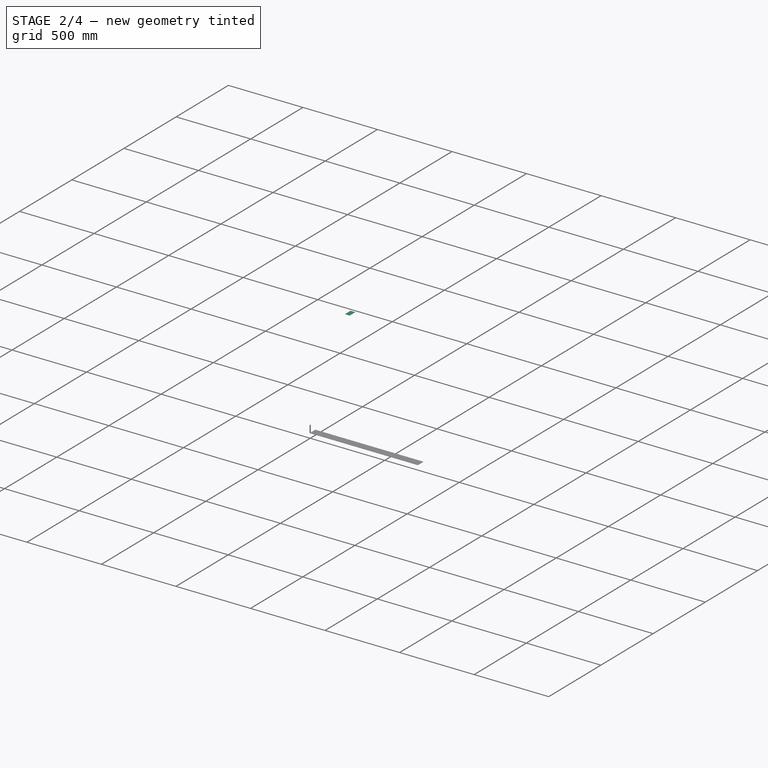
[diagram: stage 2 of 4 — iso view after this stage's code; geometry added in this stage tinted green]
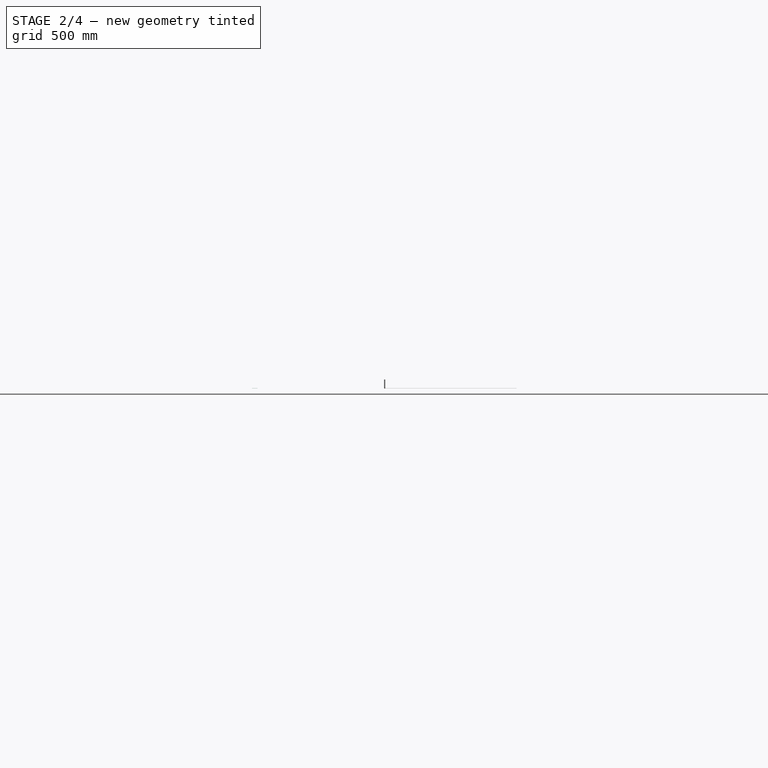
[diagram: stage 2 of 4 — front view after this stage's code; geometry added in this stage tinted green]
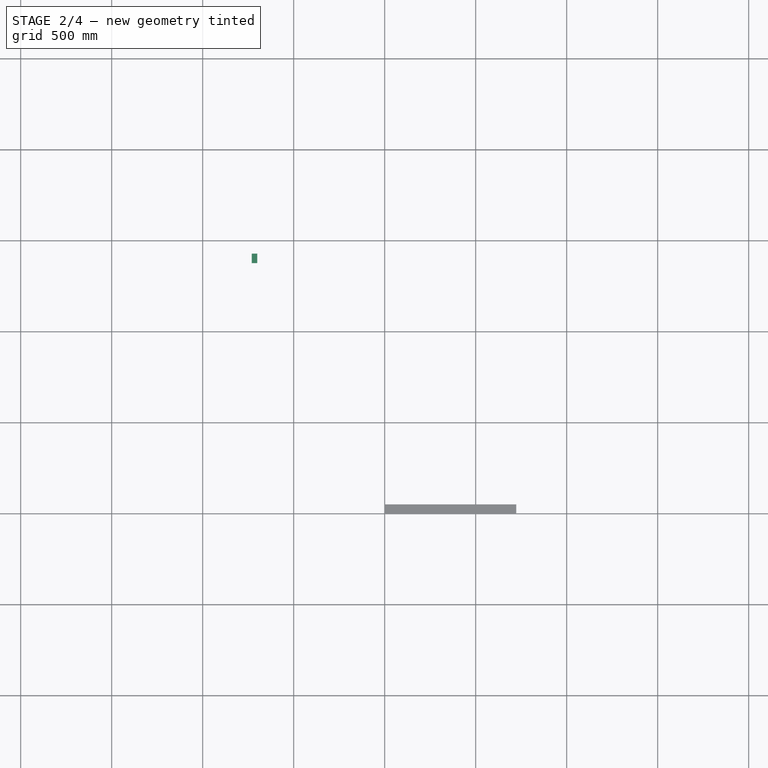
[diagram: stage 2 of 4 — top view after this stage's code; geometry added in this stage tinted green]
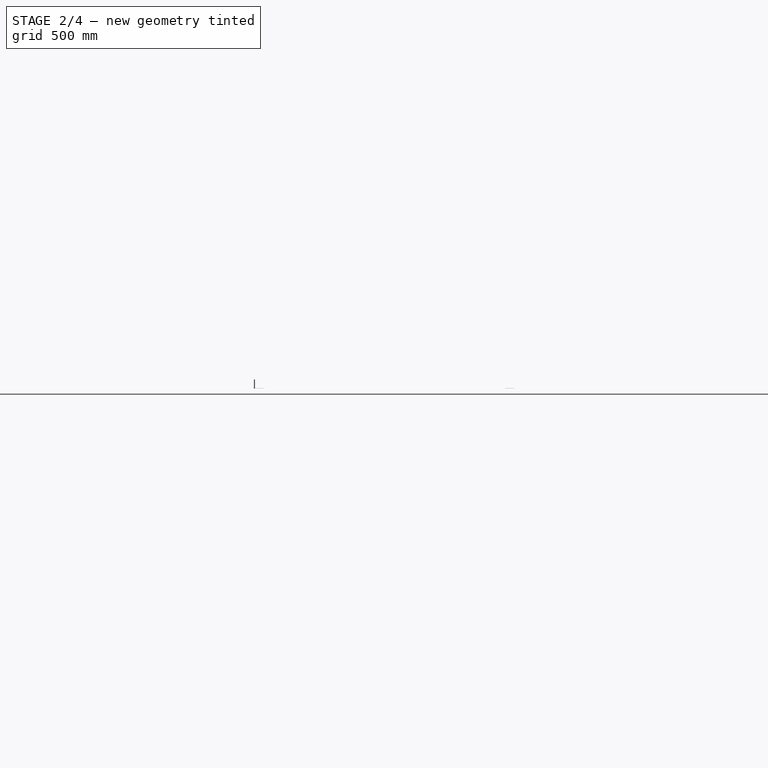
[diagram: stage 2 of 4 — right view after this stage's code; geometry added in this stage tinted green]
FEATURE [App::DocumentObjectGroup] Model
  Group = -> [Clone,Clone001]
FEATURE [Part::FeaturePython] ToolBit  label="3.175mm Endmill"  # Path/CAM toolbit (typed FeaturePython)
  BitPropertyNames = Chipload | CuttingEdgeHeight | Diameter | Flutes | Length | Material | ShankDiameter | SpindleDirection
  BitShape = <path>
  Chipload = 0
  CuttingEdgeHeight = 30
  Diameter = 3.17
  Flutes = 0
  Length = 10
  Material = 0
  ShankDiameter = 3
  ShapeName = endmill
  SpindleDirection = 0
FEATURE [Path::FeaturePython] __175mm_Endmill001  label="3.175mm Endmill002"  # Path/CAM operation (typed FeaturePython)
  HorizFeed = 33.3333
  HorizRapid = 0
  SpindleDir = 0
  SpindleSpeed = 18000
  Tool = -> ToolBit002
  ToolNumber = 1
  VertFeed = 8.33333
  VertRapid = 0
  expr: HorizRapid = SetupSheet002.HorizRapid
  expr: VertRapid = SetupSheet002.VertRapid
FEATURE [App::DocumentObjectGroup] Tools002
  Group = -> [__175mm_Endmill001]
FEATURE [Part::FeaturePython] Stock002  # WARN: FeaturePython — macro-defined, semantics opaque (R4)
  Base = -> Model002
  ExtXneg = 1
  ExtXpos = 1
  ExtYneg = 1
  ExtYpos = 1
  ExtZneg = 0
  ExtZpos = 1
  StockType = FromBase
FEATURE [Path::FeaturePython] NZV6109016  label="NZV6109017"  # Path/CAM operation (typed FeaturePython)
  HorizFeed = 51.6667
  HorizRapid = 0
  SpindleDir = 0
  SpindleSpeed = 18000
  Tool = -> ToolBit003
  ToolNumber = 2
  VertFeed = 16.6667
  VertRapid = 0
  expr: HorizRapid = SetupSheet003.HorizRapid
  expr: VertRapid = SetupSheet003.VertRapid
FEATURE [App::DocumentObjectGroup] Tools003
  Group = -> [NZV6109016]
FEATURE [Path::FeaturePython] Custom001  # Path/CAM operation (typed FeaturePython)
  Active = true
  CoolantMode = 0
  CycleTime = 00:00:00
  Gcode = G0 Z10
  OpStockZMax = 1
  OpStockZMin = 0
  OpToolDiameter = 10
  Source = 0
  StartDepth = 1
  ToolController = -> NZV6109016
FEATURE [Path::FeaturePython] Custom002  # Path/CAM operation (typed FeaturePython)
  Active = true
  CoolantMode = 0
  CycleTime = 00:00:00
  Gcode = G0 Z10
  OpStockZMax = 1.00074
  OpStockZMin = 0
  OpToolDiameter = 3.17
  Source = 0
  StartDepth = 1.00074
FEATURE [Part::Part2DObjectPython] Clone2D001  label="Model-Unfold_Sketch_bends"  # Draft 2D object (typed FeaturePython)
  Fuse = false
  Objects = -> [Unfold_Sketch_bends]
  PathResource = Model
  Placement = pos=(360.905,-1378,0) rot=(0,0,-1;1.5708rad)
  Scale = (1,1,1)
  expr: Placement = <<Model-Body002>>.Placement
FEATURE [App::DocumentObjectGroup] Model003
  Group = -> [Clone2D001]
FEATURE [Part::FeaturePython] Stock003  # WARN: FeaturePython — macro-defined, semantics opaque (R4)
  Base = -> Model003
  ExtXneg = 1
  ExtXpos = 1
  ExtYneg = 1
  ExtYpos = 1
  ExtZneg = 0
  ExtZpos = 1
  Placement = pos=(-729.33,1378,0) rot=(0,0,1;0rad)
  StockType = FromBase
FEATURE [Path::FeatureShape] PathShape001
  AbsoluteArcCenter = false
  ArcPlane = 1
  Deflection = 0.01
  Direction = 0
  EmitPreamble = false
  FeedRate = 50
  FeedRateVertical = 20
  MinDistance = 0
  NearestK = 10
  Orientation = 0
  Placement = pos=(0,0,0.5) rot=(0,0,1;0rad)
  ResumeHeight = 0.5
  RetractAxis = 2
  RetractThreshold = 3.5
  Retraction = 10
  Segmentation = 0
  SortAbscissa = 3
  SortMode = 2
  Sources = -> [Clone2D001]
  StartPoint = (0,0,0)
  UseStartPoint = false
  Verbose = true
  expr: .Placement.Base.z = ResumeHeight
  expr: Sources = <<Model003>>.Group
FEATURE [App::DocumentObjectGroup] Operations003
  Group = -> [Custom001,PathShape001,Custom002]
FEATURE [Path::FeaturePython] Job003  # Path/CAM operation (typed FeaturePython)
  CycleTime = 00:00:00
  Fixtures = G54
  GeometryTolerance = 0.01
  JobType = 0
  LastPostProcessDate = 2023-10-04 19:41:32.608317
  LastPostProcessOutput = <userpath>/2CAF-B51C/2.tap
  Model = -> Model003
  Operations = -> Operations003
  OrderOutputBy = 0
  PostProcessor = 3
  PostProcessorOutputFile = %j.tap
  SetupSheet = -> SetupSheet003
  SplitOutput = false
  Stock = -> Stock003
  Tools = -> Tools003
note: 4 file-system paths scrubbed to <path> (originals preserved in the JSON sidecar)

RESOLVED EXTERNAL PARTS (link-assembly join: the EXTERNAL_REF files above that resolve inside this repo's crawl, each included once):
---- part composit_full_size3.FCStd = doc fcstd_eedd87f2b88b (600288 chars; too large to inline — full recipe in that document) ----
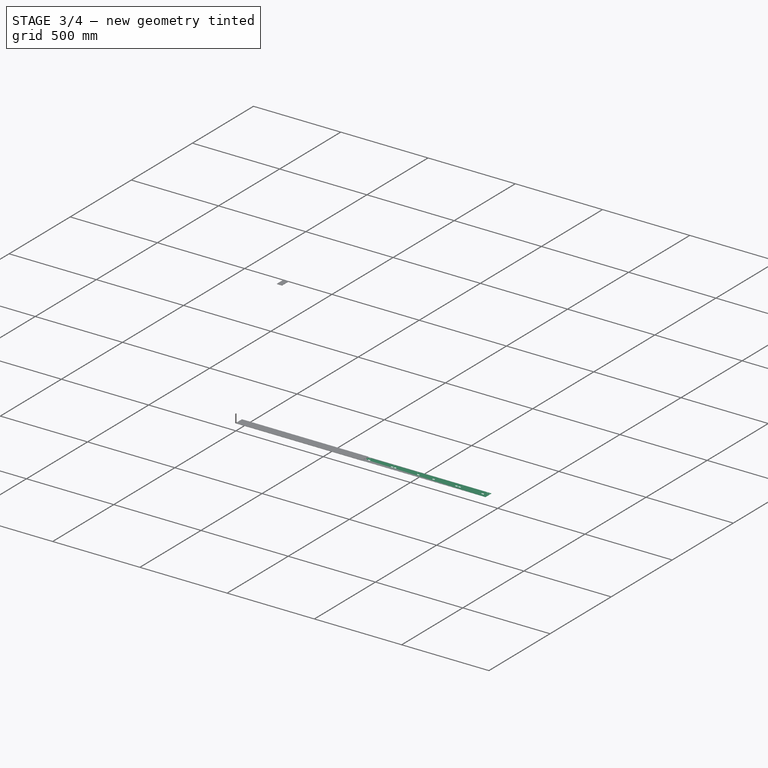
[diagram: stage 3 of 4 — iso view after this stage's code; geometry added in this stage tinted green]
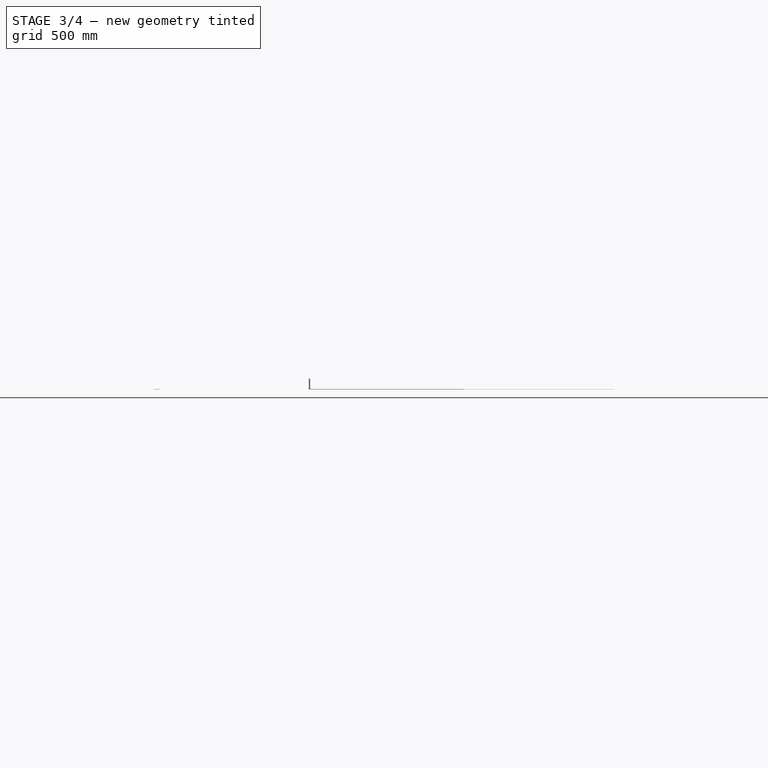
[diagram: stage 3 of 4 — front view after this stage's code; geometry added in this stage tinted green]
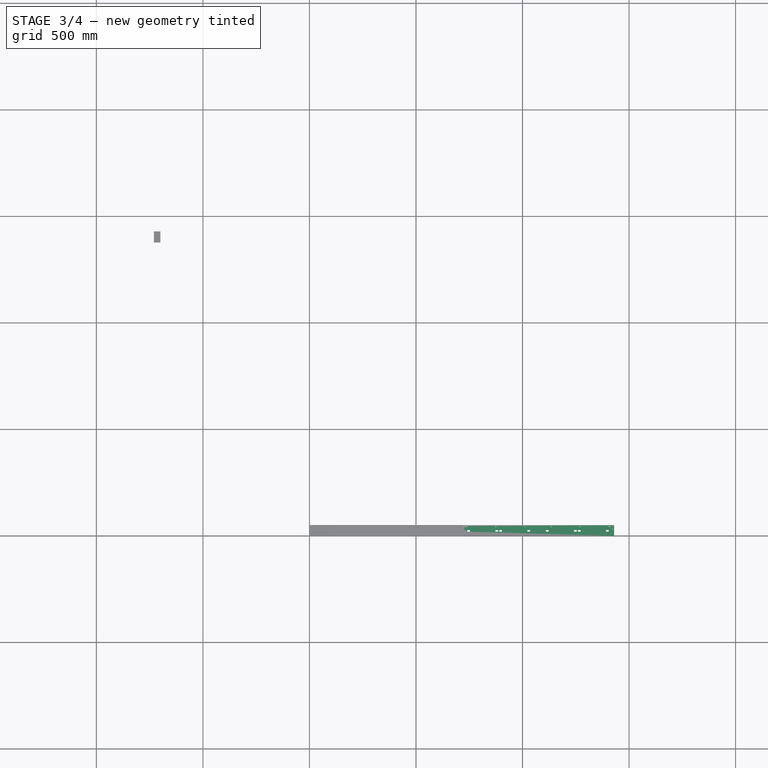
[diagram: stage 3 of 4 — top view after this stage's code; geometry added in this stage tinted green]
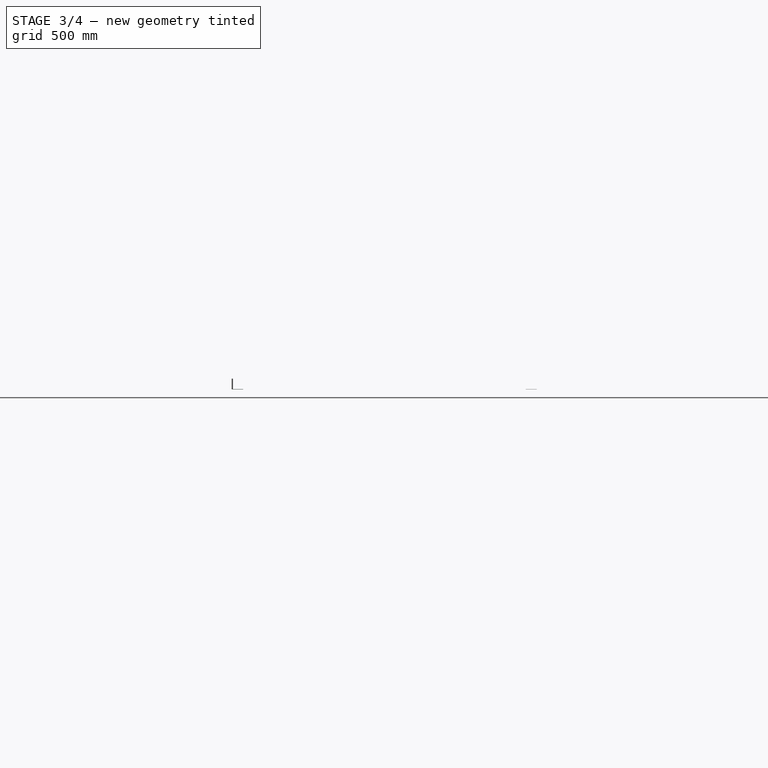
[diagram: stage 3 of 4 — right view after this stage's code; geometry added in this stage tinted green]
FEATURE [PartDesign::Body] Body
  BaseFeature = -> Unfold
  Group = -> [BaseFeature]
  Origin = -> Origin
  Tip = -> BaseFeature
FEATURE [PartDesign::FeatureBase] BaseFeature001
  BaseFeature = -> Unfold001
  Placement = pos=(-4.547e-13,-6.776e-13,351.872) rot=(0.377964,0.654654,0.654654;3.86433rad)
  expr: Placement = .BaseFeature.Placement
FEATURE [Part::FeaturePython] Clone001  label="Model-Body001"  # Draft clone (typed FeaturePython)
  AttacherType = Attacher::AttachEngine3D
  Fuse = false
  Objects = -> [Body001]
  PathResource = Model
  Placement = pos=(1072.58,-1378,-2.274e-13) rot=(0,0,1;0rad)
  Scale = (1,1,1)
FEATURE [Part::Part2DObjectPython] Rectangle  # Draft 2D object (typed FeaturePython)
  Area = 0
  ChamferSize = 0
  Columns = 1
  FilletRadius = 0
  Height = 1500
  Length = 1500
  MakeFace = false
  Rows = 1
FEATURE [Path::FeaturePython] Profile  # Path/CAM operation (typed FeaturePython)
  Active = true
  AreaParams:
    Tolerance = 1e-07
    FitArcs = True
    Simplify = False
    CleanDistance = 0.0
    Accuracy = 0.01
    Unit = 1.0
    MinArcPoints = 4
    MaxArcPoints = 100
    ClipperScale = 10000000.0
    Fill = 0
    Coplanar = 0
    Reorient = True
    Outline = False
    Explode = False
    OpenMode = 0
    Deflection = 0.01
    SubjectFill = 0
    ClipFill = 0
    Offset = -1.585
    ExtraPass = 0
    Stepover = 0.0
    LastStepover = 0.0
    JoinType = 0
    EndType = 0
    MiterLimit = 2.0
    RoundPrecision = 0.0
    PocketMode = 0
    ToolRadius = 1.0
    PocketExtraOffset = 0.0
    PocketStepover = 0.0
    PocketLastStepover = 0.0
    FromCenter = False
    Angle = 45.0
    AngleShift = 0.0
    Shift = 0.0
    Thicken = False
    SectionCount = -1
    Stepdown = 1.0
    SectionOffset = 0.0
    SectionTolerance = 1e-07
    SectionMode = 2
    Project = False
  Base = -> [Clone001]
  ClearanceHeight = 6.3
  CoolantMode = 0
  CycleTime = 00:02:04
  Direction = 1
  FinalDepth = -0.1
  HandleMultipleFeatures = 0
  JoinType = 0
  MiterLimit = 0.1
  OffsetExtra = 0
  OpFinalDepth = -2.3635e-11
  OpStartDepth = 1.3
  OpStockZMax = 1.3
  OpStockZMin = -2.3635e-11
  OpToolDiameter = 3.17
  PathParams = {'orientation': 1, 'feedrate': 33.333333333333336, 'feedrate_v': 8.333333333333334, 'verbose': True, 'resume_height': 4.300000000025008, 'retraction': 6.300000000025008, 'return_end': True, 'preamble': False, 'start': Vector (1422.569267199282, 44.0089215, 6.300000000025008)}
  SafeHeight = 4.3
  Side = 0
  SplitArcs = false
  StartDepth = 3
  StartPoint = (0,0,0)
  StepDown = 4
  ToolController = -> __175mm_Endmill
  UseComp = true
  UseStartPoint = false
  processCircles = true
  processHoles = true
  processPerimeter = false
  expr: ClearanceHeight = OpStockZMax + SetupSheet.ClearanceHeightOffset
  expr: FinalDepth = -0.1 mm
  expr: SafeHeight = OpStockZMax + SetupSheet.SafeHeightOffset
  expr: StartDepth = 3 mm
  expr: StepDown = 4 mm
FEATURE [App::FeaturePython] SetupSheet001  # Path/CAM operation (typed FeaturePython)
  ClearanceHeightExpression = OpStockZMax+SetupSheet001.ClearanceHeightOffset
  ClearanceHeightOffset = 5
  CoolantMode = 0
  CoolantModes = None | Flood | Mist
  DeburrExtraDepth = 0
  DeburrWidth = 2.7
  FinalDepthExpression = 0.6 mm
  HorizRapid = 0
  ProfileDirection = 1
  ProfileprocessCircles = true
  ProfileprocessHoles = true
  ProfileprocessPerimeter = true
  SafeHeightExpression = OpStockZMax+SetupSheet001.SafeHeightOffset
  SafeHeightOffset = 3
  StartDepthExpression = 3 mm
  StepDownExpression = OpToolDiameter
  VertRapid = 0
FEATURE [Part::Part2DObjectPython] Clone2D  label="Model-Unfold_Sketch_bends001"  # Draft 2D object (typed FeaturePython)
  Fuse = false
  Objects = -> [Unfold_Sketch_bends001]
  PathResource = Model
  Placement = pos=(1072.58,-1378,-2.274e-13) rot=(0,0,1;0rad)
  Scale = (1,1,1)
  expr: Placement = <<Model-Body001>>.Placement
FEATURE [App::DocumentObjectGroup] Model001
  Group = -> [Clone2D]
FEATURE [Part::FeaturePython] ToolBit001  label="NZV6109015"  # Path/CAM toolbit (typed FeaturePython)
  BitPropertyNames = Chipload | CuttingEdgeAngle | CuttingEdgeHeight | Diameter | Flutes | Length | Material | ShankDiameter | TipDiameter
  BitShape = <path>
  Chipload = 0
  CuttingEdgeAngle = 90
  CuttingEdgeHeight = 4
  Diameter = 10
  Flutes = 0
  Length = 50
  Material = 0
  ShankDiameter = 6
  ShapeName = chamfer
  TipDiameter = 1
FEATURE [App::DocumentObjectGroup] Model002
  Group = -> [Clone002]
FEATURE [Part::FeaturePython] ToolBit002  label="3.175mm Endmill003"  # Path/CAM toolbit (typed FeaturePython)
  BitPropertyNames = Chipload | CuttingEdgeHeight | Diameter | Flutes | Length | Material | ShankDiameter | SpindleDirection
  BitShape = <path>
  Chipload = 0
  CuttingEdgeHeight = 30
  Diameter = 3.17
  Flutes = 0
  Length = 10
  Material = 0
  ShankDiameter = 3
  ShapeName = endmill
  SpindleDirection = 0
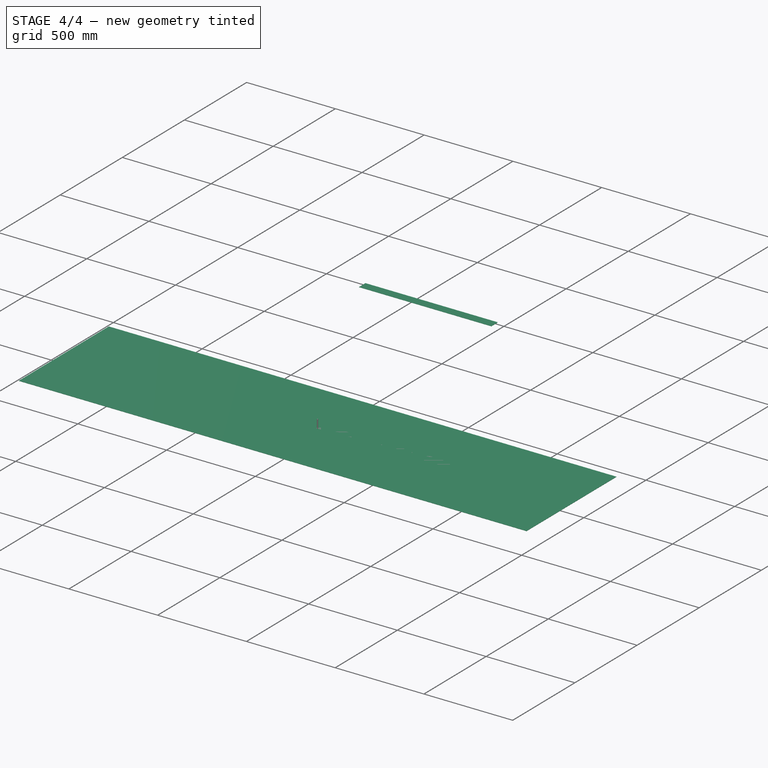
[diagram: stage 4 of 4 — iso view after this stage's code; geometry added in this stage tinted green]
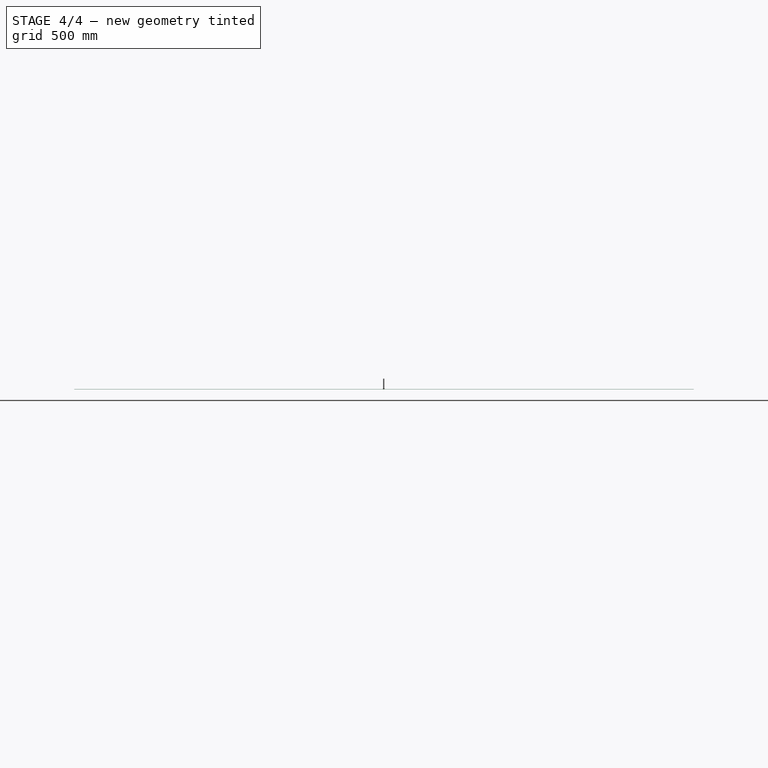
[diagram: stage 4 of 4 — front view after this stage's code; geometry added in this stage tinted green]
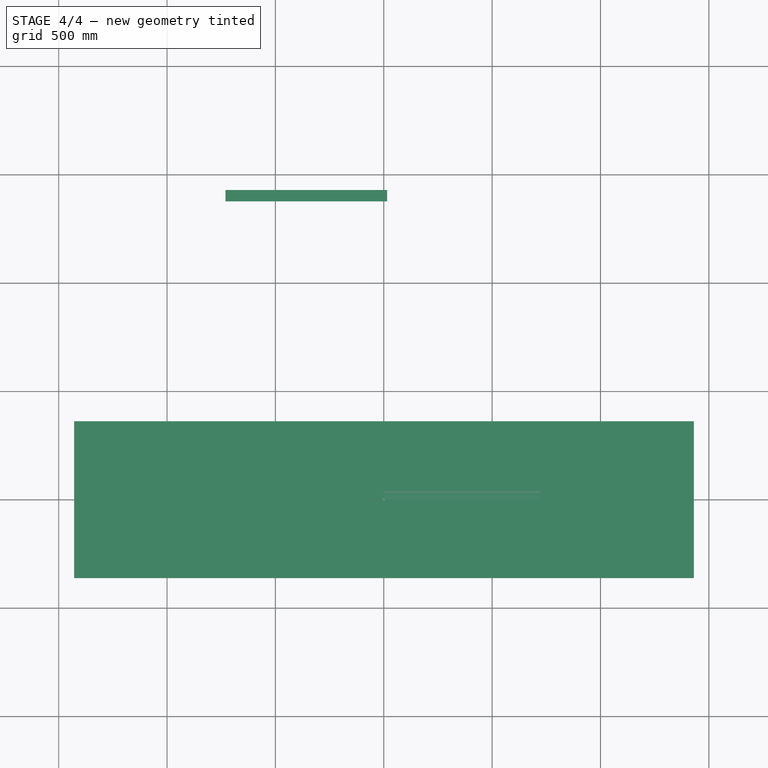
[diagram: stage 4 of 4 — top view after this stage's code; geometry added in this stage tinted green]
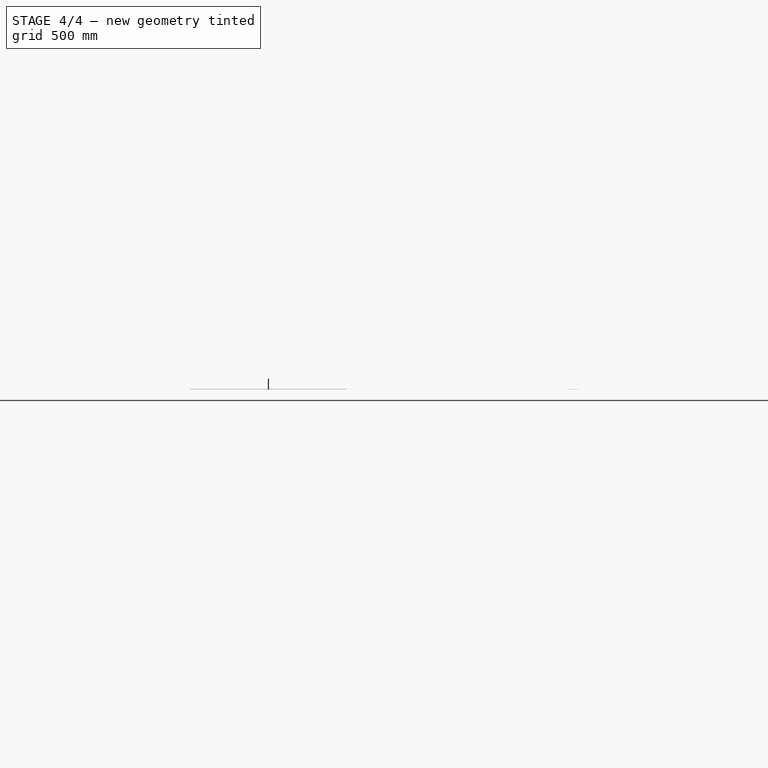
[diagram: stage 4 of 4 — right view after this stage's code; geometry added in this stage tinted green]
FEATURE [PartDesign::Body] Body001
  BaseFeature = -> Unfold001
  Group = -> [BaseFeature001]
  Origin = -> Origin001
  Tip = -> BaseFeature001
FEATURE [App::FeaturePython] SetupSheet  # Path/CAM operation (typed FeaturePython)
  ClearanceHeightExpression = OpStockZMax+SetupSheet.ClearanceHeightOffset
  ClearanceHeightOffset = 5
  CoolantMode = 0
  CoolantModes = None | Flood | Mist
  FinalDepthExpression = -0.1 mm
  HorizRapid = 0
  ProfileDirection = 1
  ProfileSide = 0
  ProfileUseComp = true
  ProfileprocessCircles = true
  ProfileprocessHoles = true
  ProfileprocessPerimeter = true
  SafeHeightExpression = OpStockZMax+SetupSheet.SafeHeightOffset
  SafeHeightOffset = 3
  StartDepthExpression = 3 mm
  StepDownExpression = 4 mm
  VertRapid = 0
FEATURE [Part::FeaturePython] Clone  label="Model-Body"  # Draft clone (typed FeaturePython)
  AttacherType = Attacher::AttachEngine3D
  Fuse = false
  Objects = -> [Body]
  PathResource = Model
  Scale = (1,1,1)
FEATURE [Path::FeaturePython] __175mm_Endmill  label="3.175mm Endmill001"  # Path/CAM operation (typed FeaturePython)
  HorizFeed = 33.3333
  HorizRapid = 0
  SpindleDir = 0
  SpindleSpeed = 18000
  Tool = -> ToolBit
  ToolNumber = 1
  VertFeed = 8.33333
  VertRapid = 0
  expr: HorizRapid = SetupSheet.HorizRapid
  expr: VertRapid = SetupSheet.VertRapid
FEATURE [App::DocumentObjectGroup] Tools
  Group = -> [__175mm_Endmill]
FEATURE [Part::FeaturePython] Stock  # WARN: FeaturePython — macro-defined, semantics opaque (R4)
  Base = -> Model
  ExtXneg = 1
  ExtXpos = 1
  ExtYneg = 1
  ExtYpos = 1
  ExtZneg = 0
  ExtZpos = 1
  Placement = pos=(-1428,-360.905,-2.3635e-11) rot=(0,0,1;0rad)
  StockType = FromBase
FEATURE [Path::FeaturePython] NZV6109015  label="NZV6109016"  # Path/CAM operation (typed FeaturePython)
  HorizFeed = 51.6667
  HorizRapid = 0
  SpindleDir = 0
  SpindleSpeed = 18000
  Tool = -> ToolBit001
  ToolNumber = 2
  VertFeed = 16.6667
  VertRapid = 0
  expr: HorizRapid = SetupSheet001.HorizRapid
  expr: VertRapid = SetupSheet001.VertRapid
FEATURE [App::DocumentObjectGroup] Tools001
  Group = -> [NZV6109015]
FEATURE [Part::FeaturePython] Stock001  # WARN: FeaturePython — macro-defined, semantics opaque (R4)
  Base = -> Model001
  ExtXneg = 1
  ExtXpos = 1
  ExtYneg = 1
  ExtYpos = 1
  ExtZneg = 0
  ExtZpos = 1
  Placement = pos=(-729.33,1378,0) rot=(0,0,1;0rad)
  StockType = FromBase
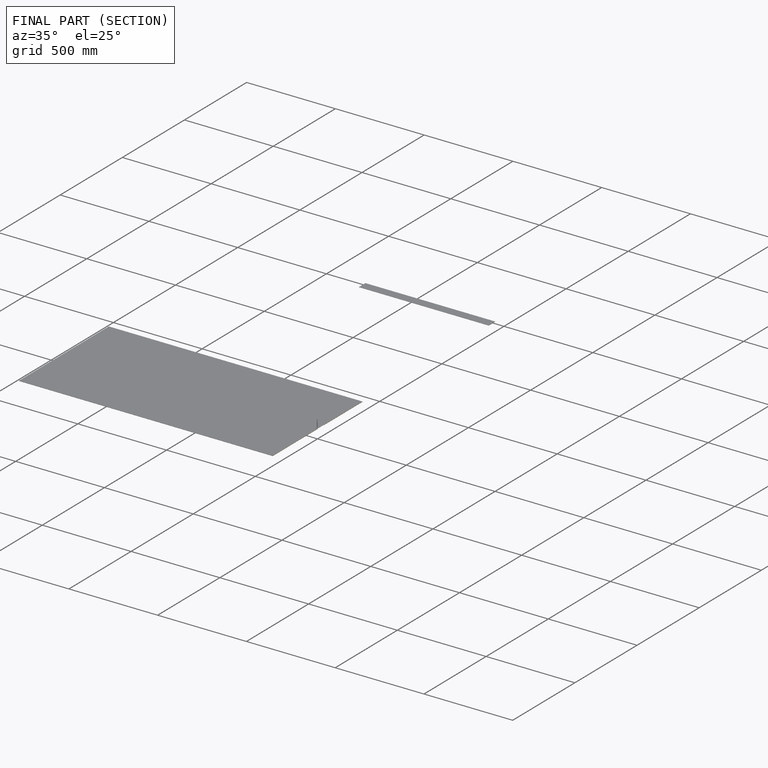
[diagram: finished part — half-section view (interior)]
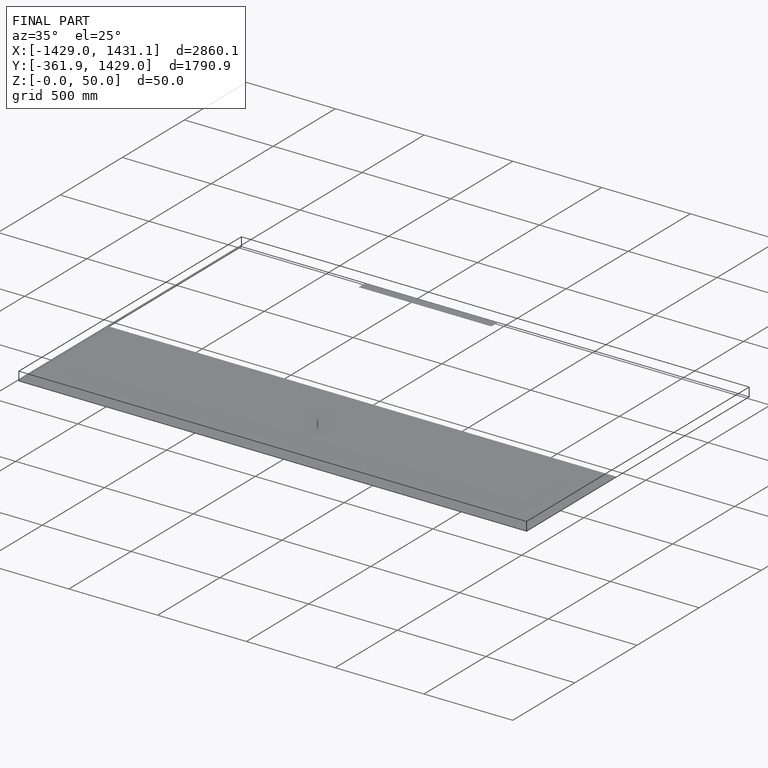
[diagram: finished part — iso view with bounding-box wireframe]
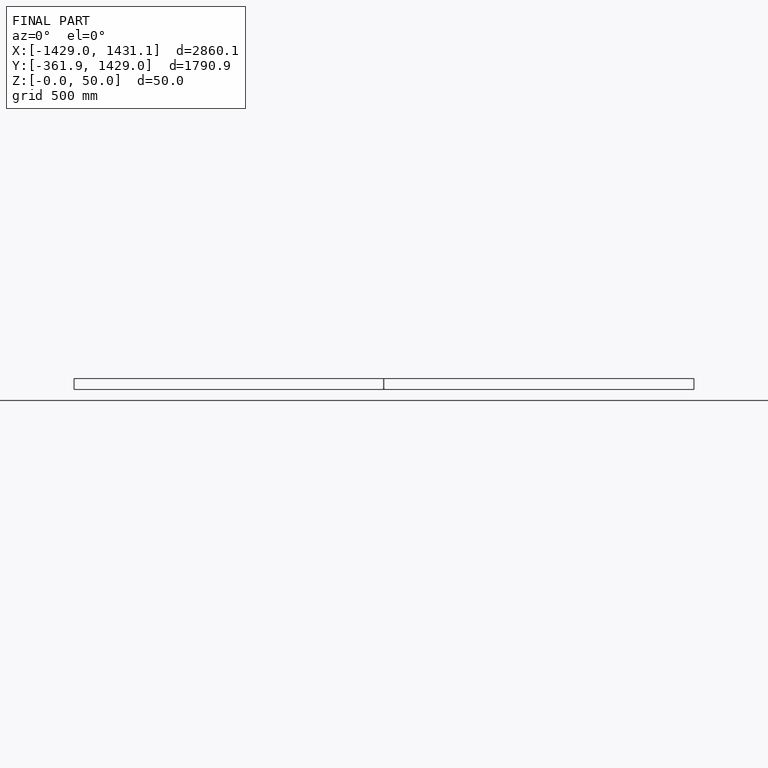
[diagram: finished part — front view with bounding-box wireframe]
